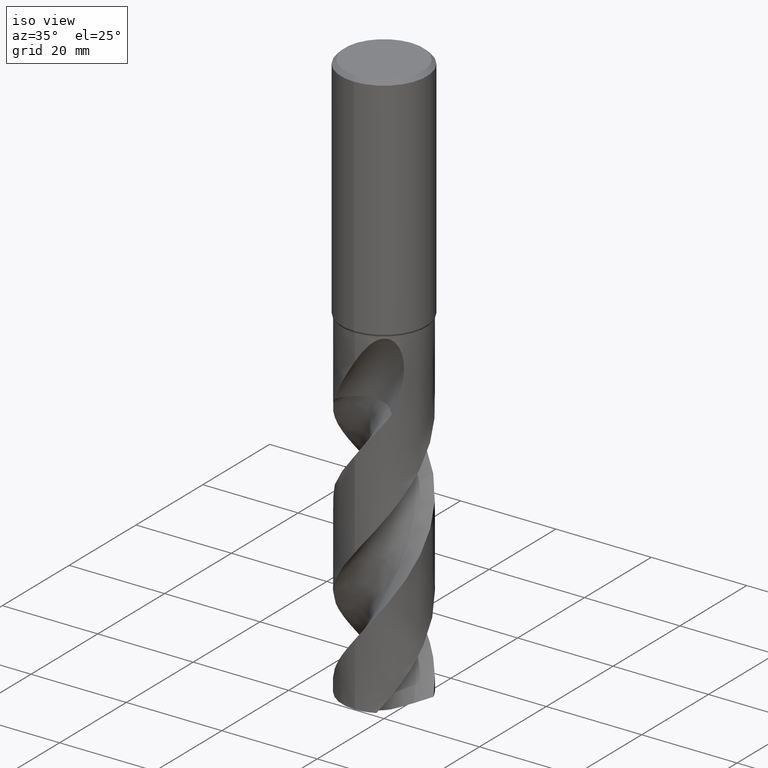
[diagram: clean part render]
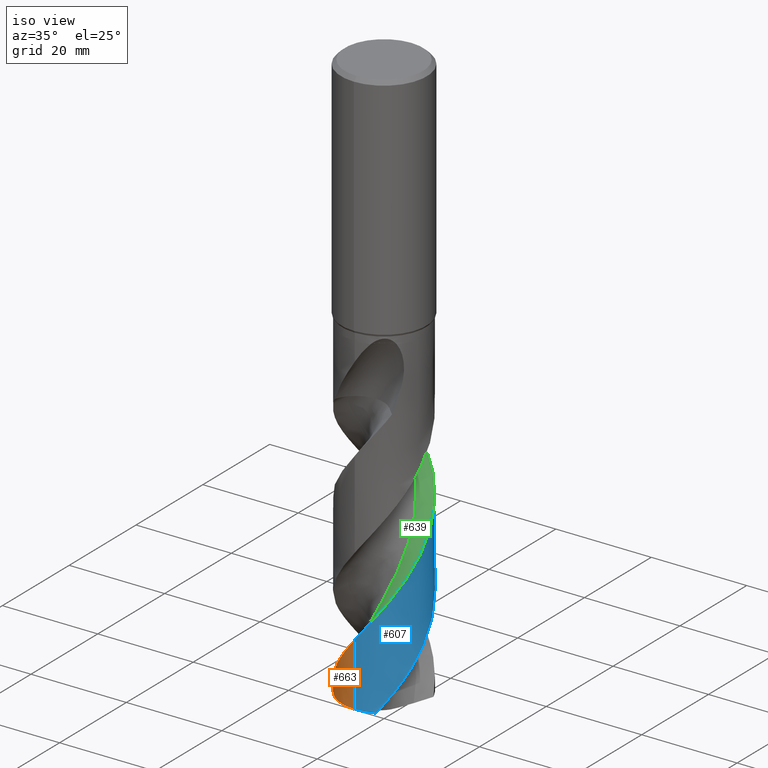
[diagram: same view with three faces highlighted in distinct colors, each labeled with its STEP entity id]
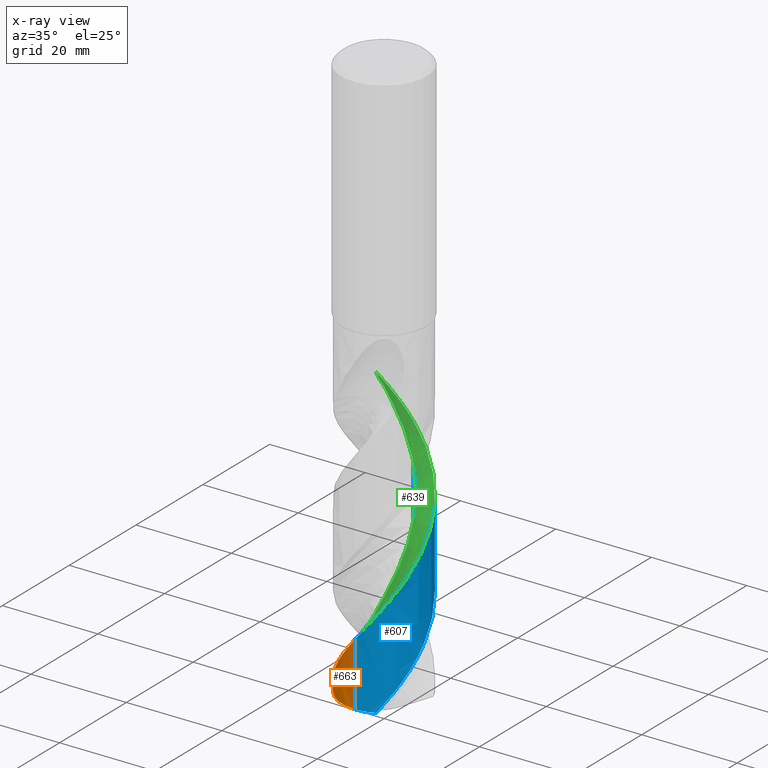
[diagram: x-ray of the same camera — body ghosted, the three highlighted faces saturated]
A machine part, iso view with three faces highlighted in distinct colors.
The next image is the same camera in x-ray (body ghosted, the three faces saturated) — at least one of them is partly hidden behind the body in this view.
Their STEP definitions:

[orange] entity #663 — the highlighted conical surface has half-angle 0 deg.
#285=EDGE_CURVE('',#453,#439,#770,.T.);
#439=VERTEX_POINT('',#943);
#453=VERTEX_POINT('',#957);
#455=EDGE_CURVE('',#439,#563,#959,.T.);
#563=VERTEX_POINT('',#1079);
#653=EDGE_CURVE('',#453,#563,#1176,.T.);
#663=ADVANCED_FACE('',(#1187),#1188,.T.);
#770=LINE('',#1386,#1387);
#943=CARTESIAN_POINT('',(5.35353248924E-016,-8.74998104379688,-106.580937867135));
#957=CARTESIAN_POINT('',(1.07070881923668E-015,-8.75,-119.815260450171));
#959=B_SPLINE_CURVE_WITH_KNOTS('',3,(#1913,#1914,#1915,#1916,#1917,#1918,#1919,#1920,#1921,#1922,#1923,#1924,#1925,#1926,#1927,#1928,#1929,#1930,#1931,#1932,#1933,#1934,#1935,#1936,#1937,#1938,#1939,#1940,#1941,#1942,#1943,#1944,#1945,#1946,#1947,#1948,#1949,#1950,#1951,#1952,#1953,#1954,#1955,#1956,#1957,#1958,#1959,#1960,#1961,#1962,#1963,#1964,#1965,#1966,#1967,#1968,#1969,#1970,#1971,#1972,#1973,#1974,#1975,#1976,#1977,#1978,#1979,#1980,#1981,#1982,#1983,#1984,#1985,#1986,#1987,#1988,#1989,#1990,#1991,#1992,#1993,#1994,#1995,#1996,#1997,#1998,#1999,#2000,#2001,#2002,#2003,#2004,#2005,#2006,#2007,#2008),.UNSPECIFIED.,.F.,.F.,(4,2,2,2,2,2,2,2,2,2,2,2,2,2,2,2,2,2,2,2,2,2,2,2,2,2,2,2,2,2,2,2,2,2,2,2,2,2,2,2,2,2,2,2,2,2,2,4),(0.0,0.245507385937715,0.350571660644554,1.39572725614413,1.7512116317998,1.97614686400498,2.18570531646539,2.90763652407848,3.24173027248753,3.70690766796851,4.3511183427417,5.37181341861911,6.99202772068814,8.75473551307176,9.8223909562357,12.4353693303586,13.5149695308237,14.5839453902504,16.7292639533528,17.8100349580554,19.9438823498146,22.0974948302043,24.2480668377977,26.3975936922339,27.4770866892394,28.5406174047994,30.6845559205653,31.7651695485302,33.8998065264109,36.0538108730351,38.2023473007618,40.3517940889976,42.5096471819675,44.6540260477166,45.7343487976098,47.8665946934781,50.0208399046384,52.1672222359407,54.3168824060441,55.3175251611577,56.2465060231122,59.741848965142,61.0610370793442,63.3781294049847,64.2490927651339,65.0112058879898,65.094397942411,70.3596380678378),.UNSPECIFIED.);
#1079=CARTESIAN_POINT('',(-8.13744065526408,-3.21629594130505,-119.815260450171));
#1176=CIRCLE('',#5056,8.75);
#1187=FACE_OUTER_BOUND('',#5070,.T.);
#1188=CONICAL_SURFACE('',#5071,8.74995,1.43235159984931E-006);
#1386=CARTESIAN_POINT('',(1.07070269620491E-015,-8.74995,-84.9076302250854));
#1387=VECTOR('',#5461,1.0);
#1913=CARTESIAN_POINT('',(-6.08186943309706,6.29062365396806,-63.235));
#1914=CARTESIAN_POINT('',(-6.0469511397404,6.32438331567688,-63.3008642196098));
#1915=CARTESIAN_POINT('',(-6.01169387384533,6.3579087591601,-63.3667040283536));
#1916=CARTESIAN_POINT('',(-5.96078889035636,6.4055069625759,-63.4606122507189));
#1917=CARTESIAN_POINT('',(-5.94546612602131,6.4197320170628,-63.4887336144532));
#1918=CARTESIAN_POINT('',(-5.77689376715895,6.57510367454731,-63.7964182335438));
#1919=CARTESIAN_POINT('',(-5.61986938115472,6.71005726589124,-64.067261411877));
#1920=CARTESIAN_POINT('',(-5.39333101928893,6.89046403370956,-64.4346657416091));
#1921=CARTESIAN_POINT('',(-5.33508238939867,6.93566993502438,-64.5273143604014));
#1922=CARTESIAN_POINT('',(-5.23841689245175,7.00873108781811,-64.6785128787296));
#1923=CARTESIAN_POINT('',(-5.20066220418053,7.03679304292886,-64.7369516106116));
#1924=CARTESIAN_POINT('',(-5.12710835866557,7.09054389196633,-64.8497869063541));
#1925=CARTESIAN_POINT('',(-5.09140179274385,7.11622730940027,-64.9041103587308));
#1926=CARTESIAN_POINT('',(-4.931615376455,7.229337483473,-65.1455740014105));
#1927=CARTESIAN_POINT('',(-4.8058804744549,7.31358327693036,-65.3319736681571));
#1928=CARTESIAN_POINT('',(-4.61491717777977,7.43429817009919,-65.6131355291182));
#1929=CARTESIAN_POINT('',(-4.55417461981925,7.47165978887842,-65.7021895700378));
#1930=CARTESIAN_POINT('',(-4.40810659691875,7.5590713937031,-65.9156068537202));
#1931=CARTESIAN_POINT('',(-4.32284856094712,7.60814257891526,-66.0396410500222));
#1932=CARTESIAN_POINT('',(-4.11732401261019,7.721878525783,-66.33734226343));
#1933=CARTESIAN_POINT('',(-3.99662547642531,7.78502685849317,-66.5109601435512));
#1934=CARTESIAN_POINT('',(-3.68149873164662,7.94066559570674,-66.9590563827829));
#1935=CARTESIAN_POINT('',(-3.48454365952162,8.02906177135658,-67.2338248923896));
#1936=CARTESIAN_POINT('',(-2.96631653643826,8.23892138626602,-67.9433538890273));
#1937=CARTESIAN_POINT('',(-2.64135024342654,8.34879770657279,-68.3745974656544));
#1938=CARTESIAN_POINT('',(-1.94973061900555,8.53811369184434,-69.2813541294336));
#1939=CARTESIAN_POINT('',(-1.58343601225544,8.61356585626273,-69.7537105830248));
#1940=CARTESIAN_POINT('',(-0.989423328932582,8.69675214728634,-70.513604482319));
#1941=CARTESIAN_POINT('',(-0.764296643250713,8.71941761225799,-70.8003492141118));
#1942=CARTESIAN_POINT('',(0.0136838135878846,8.76740065319282,-71.7888179492103));
#1943=CARTESIAN_POINT('',(0.56832329596561,8.74901878407041,-72.4879786145876));
#1944=CARTESIAN_POINT('',(1.3449189153175,8.64898492883878,-73.4787452159072));
#1945=CARTESIAN_POINT('',(1.57070264682781,8.61084288859849,-73.7683052753515));
#1946=CARTESIAN_POINT('',(2.01648424318467,8.51742343728163,-74.3449063054532));
#1947=CARTESIAN_POINT('',(2.23630284041407,8.46236365602733,-74.6317121211777));
#1948=CARTESIAN_POINT('',(2.88990635864361,8.27141903290686,-75.4946949944495));
#1949=CARTESIAN_POINT('',(3.3156792756227,8.11014469479738,-76.070187953016));
#1950=CARTESIAN_POINT('',(3.93434653549782,7.81887590722706,-76.936088591175));
#1951=CARTESIAN_POINT('',(4.1377374055473,7.71317602307682,-77.2259808179137));
#1952=CARTESIAN_POINT('',(4.72978260520718,7.37532050161368,-78.0885676501918));
#1953=CARTESIAN_POINT('',(5.10462887895006,7.12100011098209,-78.6602519777641));
#1954=CARTESIAN_POINT('',(5.81465576531498,6.55434894215413,-79.8113522498303));
#1955=CARTESIAN_POINT('',(6.14861489427896,6.24215829473489,-80.388715758733));
#1956=CARTESIAN_POINT('',(6.76450180429577,5.56874862974643,-81.5438396630749));
#1957=CARTESIAN_POINT('',(7.04535247811715,5.20885908467647,-82.1196848256906));
#1958=CARTESIAN_POINT('',(7.5481918572921,4.44902588765169,-83.2742335727208));
#1959=CARTESIAN_POINT('',(7.76958568923962,4.0500402021113,-83.8507073647394));
#1960=CARTESIAN_POINT('',(8.0540292232344,3.42733332392809,-84.7173950227698));
#1961=CARTESIAN_POINT('',(8.14092768247589,3.21548254540231,-85.0069489155959));
#1962=CARTESIAN_POINT('',(8.29676501003112,2.78858351030627,-85.5820635232352));
#1963=CARTESIAN_POINT('',(8.36585655676432,2.57388800865619,-85.8673170979798));
#1964=CARTESIAN_POINT('',(8.54895906403841,1.91922711876685,-86.7284907226256));
#1965=CARTESIAN_POINT('',(8.63709800229521,1.47268974968778,-87.3037081690975));
#1966=CARTESIAN_POINT('',(8.71688945219652,0.793743889287,-88.1693570324932));
#1967=CARTESIAN_POINT('',(8.73468768585116,0.565213562522589,-88.4592722167705));
#1968=CARTESIAN_POINT('',(8.76088967356746,-0.116169465816523,-89.3222298787584));
#1969=CARTESIAN_POINT('',(8.74314435955474,-0.569036246803677,-89.8943389300833));
#1970=CARTESIAN_POINT('',(8.6373782905467,-1.47167612533566,-91.0459857168135));
#1971=CARTESIAN_POINT('',(8.54884317358712,-1.92034627534931,-91.6235264923962));
#1972=CARTESIAN_POINT('',(8.30273017522409,-2.79894480314114,-92.7783971004299));
#1973=CARTESIAN_POINT('',(8.1457938168206,-3.22726047841483,-93.3538208056576));
#1974=CARTESIAN_POINT('',(7.76673947991715,-4.05550608650931,-94.5080111462694));
#1975=CARTESIAN_POINT('',(7.54505711999457,-4.4544072889608,-95.0845539574365));
#1976=CARTESIAN_POINT('',(7.04042120636769,-5.215722158322,-96.2408598953444));
#1977=CARTESIAN_POINT('',(6.75814944807534,-5.57660733797301,-96.8185444505766));
#1978=CARTESIAN_POINT('',(6.14181475544042,-6.24873341277387,-97.973860393479));
#1979=CARTESIAN_POINT('',(5.80891291410941,-6.5593634378046,-98.5492655798768));
#1980=CARTESIAN_POINT('',(5.27418197511157,-6.985518452004,-99.415085729937));
#1981=CARTESIAN_POINT('',(5.08947218339199,-7.12122034507693,-99.7049656319466));
#1982=CARTESIAN_POINT('',(4.52489338253435,-7.50279372557001,-100.567341567117));
#1983=CARTESIAN_POINT('',(4.1312445705883,-7.72651839791604,-101.138967443609));
#1984=CARTESIAN_POINT('',(3.30903650493038,-8.11300256718905,-102.290209920936));
#1985=CARTESIAN_POINT('',(2.88110157640309,-8.27466664491174,-102.867871051016));
#1986=CARTESIAN_POINT('',(2.00517739388076,-8.52928048852331,-104.022387319789));
#1987=CARTESIAN_POINT('',(1.55893003441526,-8.62199673376495,-104.59736122784));
#1988=CARTESIAN_POINT('',(0.655677343218739,-8.73726726780765,-105.751221411342));
#1989=CARTESIAN_POINT('',(0.199751170593909,-8.75957279491682,-106.327898872506));
#1990=CARTESIAN_POINT('',(-0.468094298187817,-8.74002909935699,-107.17373847657));
#1991=CARTESIAN_POINT('',(-0.679949724521017,-8.72610534480909,-107.442254452877));
#1992=CARTESIAN_POINT('',(-1.08714924866235,-8.68441956682777,-107.960279209299));
#1993=CARTESIAN_POINT('',(-1.28239540733151,-8.65774041111131,-108.209536055629));
#1994=CARTESIAN_POINT('',(-2.20703240870177,-8.49944129846142,-109.397757922129));
#1995=CARTESIAN_POINT('',(-2.9189716374759,-8.28201910513629,-110.333520350861));
#1996=CARTESIAN_POINT('',(-3.85026182304533,-7.86232263401528,-111.62615058281));
#1997=CARTESIAN_POINT('',(-4.09966292361018,-7.73519862420138,-111.979970120141));
#1998=CARTESIAN_POINT('',(-4.76898963767318,-7.35257888450787,-112.956813584554));
#1999=CARTESIAN_POINT('',(-5.17429777376951,-7.07322544784562,-113.57878037793));
#2000=CARTESIAN_POINT('',(-5.69680384627968,-6.64401364130755,-114.43508638268));
#2001=CARTESIAN_POINT('',(-5.83582492762374,-6.52224407368795,-114.668923794745));
#2002=CARTESIAN_POINT('',(-6.0891096053084,-6.285799327279,-115.107471232582));
#2003=CARTESIAN_POINT('',(-6.20423236127702,-6.17219876872902,-115.312060184347));
#2004=CARTESIAN_POINT('',(-6.3283599981415,-6.04272820352643,-115.539050971754));
#2005=CARTESIAN_POINT('',(-6.34053719352665,-6.02994967205847,-115.561390240879));
#2006=CARTESIAN_POINT('',(-7.12092584054977,-5.20604616901402,-116.997674512639));
#2007=CARTESIAN_POINT('',(-7.72679317395198,-4.25525561690706,-118.401274615824));
#2008=CARTESIAN_POINT('',(-8.1374406552641,-3.21629594130502,-119.815260450171));
#5056=AXIS2_PLACEMENT_3D('',#5940,#5941,#5942);
#5070=EDGE_LOOP('',(#5960,#5961,#5962));
#5071=AXIS2_PLACEMENT_3D('',#5963,#5964,#5965);
#5461=DIRECTION('',(-1.75406687008252E-022,1.43235159984882E-006,0.999999999998974));
#5940=CARTESIAN_POINT('',(0.0,0.0,-119.815260450171));
#5941=DIRECTION('',(0.0,0.0,-1.0));
#5942=DIRECTION('',(0.0,1.0,0.0));
#5960=ORIENTED_EDGE('',*,*,#285,.T.);
#5961=ORIENTED_EDGE('',*,*,#455,.T.);
#5962=ORIENTED_EDGE('',*,*,#653,.F.);
#5963=CARTESIAN_POINT('',(0.0,0.0,-84.9076302250854));
#5964=DIRECTION('',(0.0,-0.0,-1.0));
#5965=DIRECTION('',(0.0,1.0,0.0));

[blue] entity #607 — the highlighted conical surface has half-angle 0 deg.
#285=EDGE_CURVE('',#453,#439,#770,.T.);
#363=VERTEX_POINT('',#857);
#381=EDGE_CURVE('',#579,#643,#876,.T.);
#439=VERTEX_POINT('',#943);
#453=VERTEX_POINT('',#957);
#481=EDGE_CURVE('',#363,#643,#988,.T.);
#485=EDGE_CURVE('',#579,#439,#992,.T.);
#495=EDGE_CURVE('',#363,#453,#1003,.T.);
#579=VERTEX_POINT('',#1096);
#607=ADVANCED_FACE('',(#1126),#1127,.T.);
#643=VERTEX_POINT('',#1166);
#770=LINE('',#1386,#1387);
#857=CARTESIAN_POINT('',(3.89440784613365,-7.83556555252859,-119.815260450171));
#876=LINE('',#1735,#1736);
#943=CARTESIAN_POINT('',(5.35353248924E-016,-8.74998104379688,-106.580937867135));
#957=CARTESIAN_POINT('',(1.07070881923668E-015,-8.75,-119.815260450171));
#988=B_SPLINE_CURVE_WITH_KNOTS('',3,(#2854,#2855,#2856,#2857,#2858,#2859,#2860,#2861,#2862,#2863,#2864,#2865,#2866,#2867,#2868,#2869,#2870,#2871,#2872,#2873,#2874,#2875,#2876,#2877,#2878,#2879,#2880,#2881,#2882,#2883,#2884,#2885,#2886,#2887,#2888,#2889,#2890,#2891,#2892,#2893,#2894,#2895,#2896,#2897,#2898,#2899,#2900,#2901,#2902,#2903,#2904,#2905,#2906,#2907,#2908,#2909,#2910,#2911,#2912,#2913,#2914,#2915,#2916,#2917,#2918,#2919,#2920,#2921,#2922,#2923,#2924,#2925,#2926,#2927),.UNSPECIFIED.,.F.,.F.,(4,2,2,2,2,2,2,2,2,2,2,2,2,2,2,2,2,2,2,2,2,2,2,2,2,2,2,2,2,2,2,2,2,2,2,2,4),(0.0,2.36497301206587,6.7849909002851,9.76430277250232,10.6459929718991,12.8761780997283,13.9835179027227,15.4402724521849,19.3437577868716,20.1887540804374,23.6988186102446,25.2289059460162,28.3246254618018,31.0803847388049,33.8328822823677,34.8626073681816,37.6226824171356,39.5305522266099,43.3418089678106,44.0454791087935,47.9475419685857,49.4807509291733,52.0147171661633,54.8221837793143,57.6250107538903,58.6164477142462,61.8280579999074,64.9266111869091,65.5419199608778,67.4297645220761,68.5105058054339,69.4481418849442,70.2767949800885,70.6423790617482,71.1821589288828,71.8272377396169,72.933652936328),.UNSPECIFIED.);
#992=B_SPLINE_CURVE_WITH_KNOTS('',3,(#2946,#2947,#2948,#2949,#2950,#2951,#2952,#2953,#2954,#2955,#2956,#2957,#2958,#2959,#2960,#2961,#2962,#2963,#2964,#2965,#2966,#2967,#2968,#2969,#2970,#2971,#2972,#2973,#2974,#2975,#2976,#2977,#2978,#2979,#2980,#2981,#2982,#2983,#2984,#2985,#2986,#2987,#2988,#2989,#2990,#2991,#2992,#2993,#2994,#2995,#2996,#2997,#2998,#2999,#3000,#3001,#3002,#3003,#3004,#3005,#3006,#3007,#3008,#3009,#3010,#3011,#3012,#3013,#3014,#3015,#3016,#3017,#3018,#3019,#3020,#3021,#3022,#3023,#3024,#3025,#3026,#3027,#3028,#3029,#3030,#3031,#3032,#3033,#3034,#3035,#3036,#3037,#3038,#3039,#3040,#3041),.UNSPECIFIED.,.F.,.F.,(4,2,2,2,2,2,2,2,2,2,2,2,2,2,2,2,2,2,2,2,2,2,2,2,2,2,2,2,2,2,2,2,2,2,2,2,2,2,2,2,2,2,2,2,2,2,2,4),(0.0,0.245507385937715,0.350571660644554,1.39572725614413,1.7512116317998,1.97614686400498,2.18570531646539,2.90763652407848,3.24173027248753,3.70690766796851,4.3511183427417,5.37181341861911,6.99202772068814,8.75473551307176,9.8223909562357,12.4353693303586,13.5149695308237,14.5839453902504,16.7292639533528,17.8100349580554,19.9438823498146,22.0974948302043,24.2480668377977,26.3975936922339,27.4770866892394,28.5406174047994,30.6845559205653,31.7651695485302,33.8998065264109,36.0538108730351,38.2023473007618,40.3517940889976,42.5096471819675,44.6540260477166,45.7343487976098,47.8665946934781,50.0208399046384,52.1672222359407,54.3168824060441,55.3175251611577,56.2465060231122,59.741848965142,61.0610370793442,63.3781294049847,64.2490927651339,65.0112058879898,65.094397942411,70.3596380678378),.UNSPECIFIED.);
#1003=CIRCLE('',#3302,8.75);
#1096=CARTESIAN_POINT('',(3.52958839104373E-013,8.74993118278873,-71.770345190448));
#1126=FACE_OUTER_BOUND('',#4503,.T.);
#1127=CONICAL_SURFACE('',#4504,8.74995,1.43235159984931E-006);
#1166=CARTESIAN_POINT('',(2.96065067773475E-012,8.74995746372751,-90.1184510249686));
#1386=CARTESIAN_POINT('',(1.07070269620491E-015,-8.74995,-84.9076302250854));
#1387=VECTOR('',#5461,1.0);
#1735=CARTESIAN_POINT('',(-1.07234617692071E-015,8.74995,-84.9076302250854));
#1736=VECTOR('',#5618,1.0);
#2854=CARTESIAN_POINT('',(3.89440784613365,-7.83556555252858,-119.815260450171));
#2855=CARTESIAN_POINT('',(4.33170319993063,-7.6182214180527,-119.196398945775));
#2856=CARTESIAN_POINT('',(4.75018441711697,-7.36458494896007,-118.580918217599));
#2857=CARTESIAN_POINT('',(5.88435034023542,-6.53997693042121,-116.807110462486));
#2858=CARTESIAN_POINT('',(6.53457585856501,-5.8903833533333,-115.65152138681));
#2859=CARTESIAN_POINT('',(7.43518865109931,-4.65399278212995,-113.717329399373));
#2860=CARTESIAN_POINT('',(7.74384992583722,-4.11979457125902,-112.944561001383));
#2861=CARTESIAN_POINT('',(8.06769903890483,-3.39228591589958,-111.934070204199));
#2862=CARTESIAN_POINT('',(8.13635298028081,-3.22413515904378,-111.702860174744));
#2863=CARTESIAN_POINT('',(8.36009649329419,-2.6233833109259,-110.888684077942));
#2864=CARTESIAN_POINT('',(8.48651437185284,-2.18028978561825,-110.308115567706));
#2865=CARTESIAN_POINT('',(8.62274210831868,-1.50429546489641,-109.436686995622));
#2866=CARTESIAN_POINT('',(8.65910257097103,-1.27844104597479,-109.147812260206));
#2867=CARTESIAN_POINT('',(8.72270198150678,-0.753053086554415,-108.47789202142));
#2868=CARTESIAN_POINT('',(8.74337707261663,-0.453244295900362,-108.096139847963));
#2869=CARTESIAN_POINT('',(8.76272743557486,0.649641610566652,-106.696108511904));
#2870=CARTESIAN_POINT('',(8.66618078855694,1.45063769407898,-105.690694408332));
#2871=CARTESIAN_POINT('',(8.41751910025128,2.39535110757035,-104.451141913355));
#2872=CARTESIAN_POINT('',(8.36833214937878,2.56189275703494,-104.230168915274));
#2873=CARTESIAN_POINT('',(8.08934556337532,3.41249568704315,-103.093571805301));
#2874=CARTESIAN_POINT('',(7.78049419609433,4.06788917100554,-102.187945989153));
#2875=CARTESIAN_POINT('',(7.22593994733081,4.9443868657672,-100.874307632455));
#2876=CARTESIAN_POINT('',(7.0435719193716,5.20086033074232,-100.474167348369));
#2877=CARTESIAN_POINT('',(6.45190396849843,5.94470447187986,-99.2686270448316));
#2878=CARTESIAN_POINT('',(6.00271000351053,6.39803282544005,-98.4690387831516));
#2879=CARTESIAN_POINT('',(5.06759131494278,7.15560509469416,-96.9456523227321));
#2880=CARTESIAN_POINT('',(4.59358008279252,7.46878080299985,-96.2254942904531));
#2881=CARTESIAN_POINT('',(3.59141756638524,7.99903665275639,-94.7917571532783));
#2882=CARTESIAN_POINT('',(3.06669181790336,8.21441445846863,-94.0799235176288));
#2883=CARTESIAN_POINT('',(2.32322300459237,8.43855198169799,-93.0940257657705));
#2884=CARTESIAN_POINT('',(2.1186751233046,8.49222747359741,-92.8250760604097));
#2885=CARTESIAN_POINT('',(1.35775645651569,8.66260918422275,-91.8362663238484));
#2886=CARTESIAN_POINT('',(0.792510101878019,8.73252997658824,-91.1213210049251));
#2887=CARTESIAN_POINT('',(-0.168909951522251,8.7571530699265,-89.9048016258074));
#2888=CARTESIAN_POINT('',(-0.561618444592993,8.74070614232905,-89.4058475810251));
#2889=CARTESIAN_POINT('',(-1.72957057366869,8.61297443267906,-87.9152821672958));
#2890=CARTESIAN_POINT('',(-2.49255785108517,8.42383794914578,-86.9350664263736));
#2891=CARTESIAN_POINT('',(-3.3544112613626,8.08272482577655,-85.7586224832168));
#2892=CARTESIAN_POINT('',(-3.48722466693839,8.026315205304,-85.5750204646708));
#2893=CARTESIAN_POINT('',(-4.34731088341468,7.63564191063929,-84.3753101191954));
#2894=CARTESIAN_POINT('',(-5.02717081508237,7.20626867321714,-83.3729622462924));
#2895=CARTESIAN_POINT('',(-5.87996734579607,6.48741272742208,-81.9587260326153));
#2896=CARTESIAN_POINT('',(-6.10944083577987,6.2717988350377,-81.5583867921967));
#2897=CARTESIAN_POINT('',(-6.68652876115176,5.66769576244337,-80.4998629893457));
#2898=CARTESIAN_POINT('',(-7.01188466212987,5.25987784341776,-79.8443436507072));
#2899=CARTESIAN_POINT('',(-7.61741812803025,4.34390181050401,-78.4551664884814));
#2900=CARTESIAN_POINT('',(-7.88713390434146,3.8324558598345,-77.7218622996089));
#2901=CARTESIAN_POINT('',(-8.32185868144339,2.76407858425026,-76.2628073734108));
#2902=CARTESIAN_POINT('',(-8.48563718608638,2.2105279714178,-75.5389818355967));
#2903=CARTESIAN_POINT('',(-8.63211116032789,1.4454924330647,-74.5515364197295));
#2904=CARTESIAN_POINT('',(-8.66336361618098,1.24452274005791,-74.2929977448024));
#2905=CARTESIAN_POINT('',(-8.76608030877899,0.388636103869046,-73.199198606122));
#2906=CARTESIAN_POINT('',(-8.77051773069497,-0.272505999330051,-72.3693967439819));
#2907=CARTESIAN_POINT('',(-8.6330478574981,-1.56096188008581,-70.7296036209204));
#2908=CARTESIAN_POINT('',(-8.49680856401865,-2.18393899260845,-69.9219130087714));
#2909=CARTESIAN_POINT('',(-8.25416418591021,-2.90618887720968,-68.9565040712098));
#2910=CARTESIAN_POINT('',(-8.21120783118277,-3.02546740640828,-68.7956968237647));
#2911=CARTESIAN_POINT('',(-8.02534542511748,-3.50816360860754,-68.1436117579617));
#2912=CARTESIAN_POINT('',(-7.86482686725317,-3.85424698761014,-67.677425851753));
#2913=CARTESIAN_POINT('',(-7.57339811651226,-4.38791742800176,-66.916364389553));
#2914=CARTESIAN_POINT('',(-7.46013791904807,-4.57776884626446,-66.6371015498736));
#2915=CARTESIAN_POINT('',(-7.23637336220817,-4.92265464220544,-66.0889998151962));
#2916=CARTESIAN_POINT('',(-7.13556045305549,-5.06712702734824,-65.8418176058071));
#2917=CARTESIAN_POINT('',(-6.93860824422473,-5.33300556134706,-65.386569119768));
#2918=CARTESIAN_POINT('',(-6.83798033573906,-5.46131857451972,-65.1590779679701));
#2919=CARTESIAN_POINT('',(-6.69912024048935,-5.62915246597559,-64.8737565622193));
#2920=CARTESIAN_POINT('',(-6.65516293408077,-5.68108718254819,-64.7875711650207));
#2921=CARTESIAN_POINT('',(-6.54244667952824,-5.81102611221369,-64.5767108354169));
#2922=CARTESIAN_POINT('',(-6.47203642006804,-5.88944675186806,-64.4536132454853));
#2923=CARTESIAN_POINT('',(-6.30989309613395,-6.06325838141017,-64.1884602475024));
#2924=CARTESIAN_POINT('',(-6.21699254773144,-6.15863894700079,-64.0479035366565));
#2925=CARTESIAN_POINT('',(-5.95139839903355,-6.41849228923307,-63.6750785970884));
#2926=CARTESIAN_POINT('',(-5.77045196142528,-6.58231712236056,-63.4509330755424));
#2927=CARTESIAN_POINT('',(-5.57559287318262,-6.74342982981346,-63.235));
#2946=CARTESIAN_POINT('',(-6.08186943309706,6.29062365396806,-63.235));
#2947=CARTESIAN_POINT('',(-6.0469511397404,6.32438331567688,-63.3008642196098));
#2948=CARTESIAN_POINT('',(-6.01169387384533,6.3579087591601,-63.3667040283536));
#2949=CARTESIAN_POINT('',(-5.96078889035636,6.4055069625759,-63.4606122507189));
#2950=CARTESIAN_POINT('',(-5.94546612602131,6.4197320170628,-63.4887336144532));
#2951=CARTESIAN_POINT('',(-5.77689376715895,6.57510367454731,-63.7964182335438));
#2952=CARTESIAN_POINT('',(-5.61986938115472,6.71005726589124,-64.067261411877));
#2953=CARTESIAN_POINT('',(-5.39333101928893,6.89046403370956,-64.4346657416091));
#2954=CARTESIAN_POINT('',(-5.33508238939867,6.93566993502438,-64.5273143604014));
#2955=CARTESIAN_POINT('',(-5.23841689245175,7.00873108781811,-64.6785128787296));
#2956=CARTESIAN_POINT('',(-5.20066220418053,7.03679304292886,-64.7369516106116));
#2957=CARTESIAN_POINT('',(-5.12710835866557,7.09054389196633,-64.8497869063541));
#2958=CARTESIAN_POINT('',(-5.09140179274385,7.11622730940027,-64.9041103587308));
#2959=CARTESIAN_POINT('',(-4.931615376455,7.229337483473,-65.1455740014105));
#2960=CARTESIAN_POINT('',(-4.8058804744549,7.31358327693036,-65.3319736681571));
#2961=CARTESIAN_POINT('',(-4.61491717777977,7.43429817009919,-65.6131355291182));
#2962=CARTESIAN_POINT('',(-4.55417461981925,7.47165978887842,-65.7021895700378));
#2963=CARTESIAN_POINT('',(-4.40810659691875,7.5590713937031,-65.9156068537202));
#2964=CARTESIAN_POINT('',(-4.32284856094712,7.60814257891526,-66.0396410500222));
#2965=CARTESIAN_POINT('',(-4.11732401261019,7.721878525783,-66.33734226343));
#2966=CARTESIAN_POINT('',(-3.99662547642531,7.78502685849317,-66.5109601435512));
#2967=CARTESIAN_POINT('',(-3.68149873164662,7.94066559570674,-66.9590563827829));
#2968=CARTESIAN_POINT('',(-3.48454365952162,8.02906177135658,-67.2338248923896));
#2969=CARTESIAN_POINT('',(-2.96631653643826,8.23892138626602,-67.9433538890273));
#2970=CARTESIAN_POINT('',(-2.64135024342654,8.34879770657279,-68.3745974656544));
#2971=CARTESIAN_POINT('',(-1.94973061900555,8.53811369184434,-69.2813541294336));
#2972=CARTESIAN_POINT('',(-1.58343601225544,8.61356585626273,-69.7537105830248));
#2973=CARTESIAN_POINT('',(-0.989423328932582,8.69675214728634,-70.513604482319));
#2974=CARTESIAN_POINT('',(-0.764296643250713,8.71941761225799,-70.8003492141118));
#2975=CARTESIAN_POINT('',(0.0136838135878846,8.76740065319282,-71.7888179492103));
#2976=CARTESIAN_POINT('',(0.56832329596561,8.74901878407041,-72.4879786145876));
#2977=CARTESIAN_POINT('',(1.3449189153175,8.64898492883878,-73.4787452159072));
#2978=CARTESIAN_POINT('',(1.57070264682781,8.61084288859849,-73.7683052753515));
#2979=CARTESIAN_POINT('',(2.01648424318467,8.51742343728163,-74.3449063054532));
#2980=CARTESIAN_POINT('',(2.23630284041407,8.46236365602733,-74.6317121211777));
#2981=CARTESIAN_POINT('',(2.88990635864361,8.27141903290686,-75.4946949944495));
#2982=CARTESIAN_POINT('',(3.3156792756227,8.11014469479738,-76.070187953016));
#2983=CARTESIAN_POINT('',(3.93434653549782,7.81887590722706,-76.936088591175));
#2984=CARTESIAN_POINT('',(4.1377374055473,7.71317602307682,-77.2259808179137));
#2985=CARTESIAN_POINT('',(4.72978260520718,7.37532050161368,-78.0885676501918));
#2986=CARTESIAN_POINT('',(5.10462887895006,7.12100011098209,-78.6602519777641));
#2987=CARTESIAN_POINT('',(5.81465576531498,6.55434894215413,-79.8113522498303));
#2988=CARTESIAN_POINT('',(6.14861489427896,6.24215829473489,-80.388715758733));
#2989=CARTESIAN_POINT('',(6.76450180429577,5.56874862974643,-81.5438396630749));
#2990=CARTESIAN_POINT('',(7.04535247811715,5.20885908467647,-82.1196848256906));
#2991=CARTESIAN_POINT('',(7.5481918572921,4.44902588765169,-83.2742335727208));
#2992=CARTESIAN_POINT('',(7.76958568923962,4.0500402021113,-83.8507073647394));
#2993=CARTESIAN_POINT('',(8.0540292232344,3.42733332392809,-84.7173950227698));
#2994=CARTESIAN_POINT('',(8.14092768247589,3.21548254540231,-85.0069489155959));
#2995=CARTESIAN_POINT('',(8.29676501003112,2.78858351030627,-85.5820635232352));
#2996=CARTESIAN_POINT('',(8.36585655676432,2.57388800865619,-85.8673170979798));
#2997=CARTESIAN_POINT('',(8.54895906403841,1.91922711876685,-86.7284907226256));
#2998=CARTESIAN_POINT('',(8.63709800229521,1.47268974968778,-87.3037081690975));
#2999=CARTESIAN_POINT('',(8.71688945219652,0.793743889287,-88.1693570324932));
#3000=CARTESIAN_POINT('',(8.73468768585116,0.565213562522589,-88.4592722167705));
#3001=CARTESIAN_POINT('',(8.76088967356746,-0.116169465816523,-89.3222298787584));
#3002=CARTESIAN_POINT('',(8.74314435955474,-0.569036246803677,-89.8943389300833));
#3003=CARTESIAN_POINT('',(8.6373782905467,-1.47167612533566,-91.0459857168135));
#3004=CARTESIAN_POINT('',(8.54884317358712,-1.92034627534931,-91.6235264923962));
#3005=CARTESIAN_POINT('',(8.30273017522409,-2.79894480314114,-92.7783971004299));
#3006=CARTESIAN_POINT('',(8.1457938168206,-3.22726047841483,-93.3538208056576));
#3007=CARTESIAN_POINT('',(7.76673947991715,-4.05550608650931,-94.5080111462694));
#3008=CARTESIAN_POINT('',(7.54505711999457,-4.4544072889608,-95.0845539574365));
#3009=CARTESIAN_POINT('',(7.04042120636769,-5.215722158322,-96.2408598953444));
#3010=CARTESIAN_POINT('',(6.75814944807534,-5.57660733797301,-96.8185444505766));
#3011=CARTESIAN_POINT('',(6.14181475544042,-6.24873341277387,-97.973860393479));
#3012=CARTESIAN_POINT('',(5.80891291410941,-6.5593634378046,-98.5492655798768));
#3013=CARTESIAN_POINT('',(5.27418197511157,-6.985518452004,-99.415085729937));
#3014=CARTESIAN_POINT('',(5.08947218339199,-7.12122034507693,-99.7049656319466));
#3015=CARTESIAN_POINT('',(4.52489338253435,-7.50279372557001,-100.567341567117));
#3016=CARTESIAN_POINT('',(4.1312445705883,-7.72651839791604,-101.138967443609));
#3017=CARTESIAN_POINT('',(3.30903650493038,-8.11300256718905,-102.290209920936));
#3018=CARTESIAN_POINT('',(2.88110157640309,-8.27466664491174,-102.867871051016));
#3019=CARTESIAN_POINT('',(2.00517739388076,-8.52928048852331,-104.022387319789));
#3020=CARTESIAN_POINT('',(1.55893003441526,-8.62199673376495,-104.59736122784));
#3021=CARTESIAN_POINT('',(0.655677343218739,-8.73726726780765,-105.751221411342));
#3022=CARTESIAN_POINT('',(0.199751170593909,-8.75957279491682,-106.327898872506));
#3023=CARTESIAN_POINT('',(-0.468094298187817,-8.74002909935699,-107.17373847657));
#3024=CARTESIAN_POINT('',(-0.679949724521017,-8.72610534480909,-107.442254452877));
#3025=CARTESIAN_POINT('',(-1.08714924866235,-8.68441956682777,-107.960279209299));
#3026=CARTESIAN_POINT('',(-1.28239540733151,-8.65774041111131,-108.209536055629));
#3027=CARTESIAN_POINT('',(-2.20703240870177,-8.49944129846142,-109.397757922129));
#3028=CARTESIAN_POINT('',(-2.9189716374759,-8.28201910513629,-110.333520350861));
#3029=CARTESIAN_POINT('',(-3.85026182304533,-7.86232263401528,-111.62615058281));
#3030=CARTESIAN_POINT('',(-4.09966292361018,-7.73519862420138,-111.979970120141));
#3031=CARTESIAN_POINT('',(-4.76898963767318,-7.35257888450787,-112.956813584554));
#3032=CARTESIAN_POINT('',(-5.17429777376951,-7.07322544784562,-113.57878037793));
#3033=CARTESIAN_POINT('',(-5.69680384627968,-6.64401364130755,-114.43508638268));
#3034=CARTESIAN_POINT('',(-5.83582492762374,-6.52224407368795,-114.668923794745));
#3035=CARTESIAN_POINT('',(-6.0891096053084,-6.285799327279,-115.107471232582));
#3036=CARTESIAN_POINT('',(-6.20423236127702,-6.17219876872902,-115.312060184347));
#3037=CARTESIAN_POINT('',(-6.3283599981415,-6.04272820352643,-115.539050971754));
#3038=CARTESIAN_POINT('',(-6.34053719352665,-6.02994967205847,-115.561390240879));
#3039=CARTESIAN_POINT('',(-7.12092584054977,-5.20604616901402,-116.997674512639));
#3040=CARTESIAN_POINT('',(-7.72679317395198,-4.25525561690706,-118.401274615824));
#3041=CARTESIAN_POINT('',(-8.1374406552641,-3.21629594130502,-119.815260450171));
#3302=AXIS2_PLACEMENT_3D('',#5762,#5763,#5764);
#4503=EDGE_LOOP('',(#5892,#5893,#5894,#5895,#5896));
#4504=AXIS2_PLACEMENT_3D('',#5897,#5898,#5899);
#5461=DIRECTION('',(-1.75406687008252E-022,1.43235159984882E-006,0.999999999998974));
#5618=DIRECTION('',(-1.75406687008252E-022,1.43235159984882E-006,-0.999999999998974));
#5762=CARTESIAN_POINT('',(0.0,0.0,-119.815260450171));
#5763=DIRECTION('',(0.0,0.0,-1.0));
#5764=DIRECTION('',(0.0,1.0,0.0));
#5892=ORIENTED_EDGE('',*,*,#381,.F.);
#5893=ORIENTED_EDGE('',*,*,#485,.T.);
#5894=ORIENTED_EDGE('',*,*,#285,.F.);
#5895=ORIENTED_EDGE('',*,*,#495,.F.);
#5896=ORIENTED_EDGE('',*,*,#481,.T.);
#5897=CARTESIAN_POINT('',(0.0,0.0,-84.9076302250854));
#5898=DIRECTION('',(0.0,-0.0,-1.0));
#5899=DIRECTION('',(0.0,1.0,0.0));

[green] entity #639 — the highlighted face is a freeform B-spline surface patch.
#295=VERTEX_POINT('',#780);
#433=EDGE_CURVE('',#555,#295,#937,.T.);
#439=VERTEX_POINT('',#943);
#455=EDGE_CURVE('',#439,#563,#959,.T.);
#485=EDGE_CURVE('',#579,#439,#992,.T.);
#555=VERTEX_POINT('',#1071);
#563=VERTEX_POINT('',#1079);
#579=VERTEX_POINT('',#1096);
#583=VERTEX_POINT('',#1100);
#589=EDGE_CURVE('',#555,#583,#1106,.T.);
#639=ADVANCED_FACE('',(#1161),#1162,.F.);
#701=EDGE_CURVE('',#563,#583,#1228,.T.);
#717=EDGE_CURVE('',#295,#579,#1244,.T.);
#780=CARTESIAN_POINT('',(-6.08186943309707,6.29062365396806,-63.235));
#937=LINE('',#1875,#1876);
#943=CARTESIAN_POINT('',(5.35353248924E-016,-8.74998104379688,-106.580937867135));
#959=B_SPLINE_CURVE_WITH_KNOTS('',3,(#1913,#1914,#1915,#1916,#1917,#1918,#1919,#1920,#1921,#1922,#1923,#1924,#1925,#1926,#1927,#1928,#1929,#1930,#1931,#1932,#1933,#1934,#1935,#1936,#1937,#1938,#1939,#1940,#1941,#1942,#1943,#1944,#1945,#1946,#1947,#1948,#1949,#1950,#1951,#1952,#1953,#1954,#1955,#1956,#1957,#1958,#1959,#1960,#1961,#1962,#1963,#1964,#1965,#1966,#1967,#1968,#1969,#1970,#1971,#1972,#1973,#1974,#1975,#1976,#1977,#1978,#1979,#1980,#1981,#1982,#1983,#1984,#1985,#1986,#1987,#1988,#1989,#1990,#1991,#1992,#1993,#1994,#1995,#1996,#1997,#1998,#1999,#2000,#2001,#2002,#2003,#2004,#2005,#2006,#2007,#2008),.UNSPECIFIED.,.F.,.F.,(4,2,2,2,2,2,2,2,2,2,2,2,2,2,2,2,2,2,2,2,2,2,2,2,2,2,2,2,2,2,2,2,2,2,2,2,2,2,2,2,2,2,2,2,2,2,2,4),(0.0,0.245507385937715,0.350571660644554,1.39572725614413,1.7512116317998,1.97614686400498,2.18570531646539,2.90763652407848,3.24173027248753,3.70690766796851,4.3511183427417,5.37181341861911,6.99202772068814,8.75473551307176,9.8223909562357,12.4353693303586,13.5149695308237,14.5839453902504,16.7292639533528,17.8100349580554,19.9438823498146,22.0974948302043,24.2480668377977,26.3975936922339,27.4770866892394,28.5406174047994,30.6845559205653,31.7651695485302,33.8998065264109,36.0538108730351,38.2023473007618,40.3517940889976,42.5096471819675,44.6540260477166,45.7343487976098,47.8665946934781,50.0208399046384,52.1672222359407,54.3168824060441,55.3175251611577,56.2465060231122,59.741848965142,61.0610370793442,63.3781294049847,64.2490927651339,65.0112058879898,65.094397942411,70.3596380678378),.UNSPECIFIED.);
#992=B_SPLINE_CURVE_WITH_KNOTS('',3,(#2946,#2947,#2948,#2949,#2950,#2951,#2952,#2953,#2954,#2955,#2956,#2957,#2958,#2959,#2960,#2961,#2962,#2963,#2964,#2965,#2966,#2967,#2968,#2969,#2970,#2971,#2972,#2973,#2974,#2975,#2976,#2977,#2978,#2979,#2980,#2981,#2982,#2983,#2984,#2985,#2986,#2987,#2988,#2989,#2990,#2991,#2992,#2993,#2994,#2995,#2996,#2997,#2998,#2999,#3000,#3001,#3002,#3003,#3004,#3005,#3006,#3007,#3008,#3009,#3010,#3011,#3012,#3013,#3014,#3015,#3016,#3017,#3018,#3019,#3020,#3021,#3022,#3023,#3024,#3025,#3026,#3027,#3028,#3029,#3030,#3031,#3032,#3033,#3034,#3035,#3036,#3037,#3038,#3039,#3040,#3041),.UNSPECIFIED.,.F.,.F.,(4,2,2,2,2,2,2,2,2,2,2,2,2,2,2,2,2,2,2,2,2,2,2,2,2,2,2,2,2,2,2,2,2,2,2,2,2,2,2,2,2,2,2,2,2,2,2,4),(0.0,0.245507385937715,0.350571660644554,1.39572725614413,1.7512116317998,1.97614686400498,2.18570531646539,2.90763652407848,3.24173027248753,3.70690766796851,4.3511183427417,5.37181341861911,6.99202772068814,8.75473551307176,9.8223909562357,12.4353693303586,13.5149695308237,14.5839453902504,16.7292639533528,17.8100349580554,19.9438823498146,22.0974948302043,24.2480668377977,26.3975936922339,27.4770866892394,28.5406174047994,30.6845559205653,31.7651695485302,33.8998065264109,36.0538108730351,38.2023473007618,40.3517940889976,42.5096471819675,44.6540260477166,45.7343487976098,47.8665946934781,50.0208399046384,52.1672222359407,54.3168824060441,55.3175251611577,56.2465060231122,59.741848965142,61.0610370793442,63.3781294049847,64.2490927651339,65.0112058879898,65.094397942411,70.3596380678378),.UNSPECIFIED.);
#1071=CARTESIAN_POINT('',(-4.12478955449379,4.33354377550621,-63.235));
#1079=CARTESIAN_POINT('',(-8.13744065526408,-3.21629594130505,-119.815260450171));
#1096=CARTESIAN_POINT('',(3.52958839104373E-013,8.74993118278873,-71.770345190448));
#1100=CARTESIAN_POINT('',(-5.37178128145233,-1.24871425534203,-120.992700976098));
#1106=B_SPLINE_CURVE_WITH_KNOTS('',3,(#4402,#4403,#4404,#4405,#4406,#4407,#4408,#4409,#4410,#4411,#4412,#4413,#4414,#4415,#4416,#4417,#4418,#4419,#4420,#4421,#4422,#4423,#4424,#4425,#4426,#4427,#4428,#4429,#4430,#4431,#4432,#4433,#4434,#4435,#4436,#4437,#4438,#4439,#4440,#4441,#4442,#4443,#4444,#4445,#4446,#4447,#4448,#4449,#4450,#4451,#4452,#4453,#4454,#4455,#4456,#4457,#4458,#4459),.UNSPECIFIED.,.F.,.F.,(4,1,2,2,2,2,2,2,1,2,1,2,1,2,1,2,1,2,1,2,1,2,1,2,1,2,1,2,1,2,1,2,2,1,2,4),(0.0,1.39101639114549,2.78203278229099,4.17304917343648,5.56406556458198,6.95508195572747,8.34609834687297,11.128131129164,13.9101639114549,16.6921966937459,19.4742294760369,22.2562622583279,25.0382950406189,27.8203278229099,30.6023606052009,33.3843933874919,36.1664261697829,38.9484589520739,41.7304917343648,44.5125245166558,47.2945572989468,50.0765900812378,52.8586228635288,55.6406556458198,58.4226884281108,61.2047212104018,63.9867539926927,66.7687867749837,69.5508195572747,72.3328523395657,75.1148851218567,77.8969179041477,80.6789506864387,83.4609834687297,86.2430162510207,89.0250490333116),.UNSPECIFIED.);
#1161=FACE_OUTER_BOUND('',#4668,.T.);
#1162=B_SPLINE_SURFACE_WITH_KNOTS('',3,3,((#4669,#4670,#4671,#4672,#4673,#4674,#4675,#4676,#4677,#4678,#4679,#4680,#4681,#4682,#4683,#4684,#4685,#4686,#4687,#4688,#4689,#4690,#4691,#4692,#4693,#4694,#4695,#4696,#4697,#4698,#4699,#4700,#4701,#4702,#4703,#4704,#4705,#4706,#4707,#4708,#4709,#4710,#4711,#4712,#4713,#4714,#4715,#4716,#4717,#4718,#4719,#4720,#4721,#4722,#4723,#4724,#4725,#4726,#4727,#4728),(#4729,#4730,#4731,#4732,#4733,#4734,#4735,#4736,#4737,#4738,#4739,#4740,#4741,#4742,#4743,#4744,#4745,#4746,#4747,#4748,#4749,#4750,#4751,#4752,#4753,#4754,#4755,#4756,#4757,#4758,#4759,#4760,#4761,#4762,#4763,#4764,#4765,#4766,#4767,#4768,#4769,#4770,#4771,#4772,#4773,#4774,#4775,#4776,#4777,#4778,#4779,#4780,#4781,#4782,#4783,#4784,#4785,#4786,#4787,#4788),(#4789,#4790,#4791,#4792,#4793,#4794,#4795,#4796,#4797,#4798,#4799,#4800,#4801,#4802,#4803,#4804,#4805,#4806,#4807,#4808,#4809,#4810,#4811,#4812,#4813,#4814,#4815,#4816,#4817,#4818,#4819,#4820,#4821,#4822,#4823,#4824,#4825,#4826,#4827,#4828,#4829,#4830,#4831,#4832,#4833,#4834,#4835,#4836,#4837,#4838,#4839,#4840,#4841,#4842,#4843,#4844,#4845,#4846,#4847,#4848),(#4849,#4850,#4851,#4852,#4853,#4854,#4855,#4856,#4857,#4858,#4859,#4860,#4861,#4862,#4863,#4864,#4865,#4866,#4867,#4868,#4869,#4870,#4871,#4872,#4873,#4874,#4875,#4876,#4877,#4878,#4879,#4880,#4881,#4882,#4883,#4884,#4885,#4886,#4887,#4888,#4889,#4890,#4891,#4892,#4893,#4894,#4895,#4896,#4897,#4898,#4899,#4900,#4901,#4902,#4903,#4904,#4905,#4906,#4907,#4908)),.UNSPECIFIED.,.F.,.F.,.F.,(4,4),(4,1,2,2,2,2,2,2,2,2,1,2,1,2,1,2,1,2,1,2,1,2,1,2,1,2,1,2,1,2,1,2,2,2,2,4),(2.5367484805458E-015,11.66666667),(0.0,1.39101639114549,2.78203278229099,4.17304917343648,5.56406556458198,6.95508195572747,8.34609834687297,11.128131129164,13.9101639114549,16.6921966937459,19.4742294760369,22.2562622583279,25.0382950406189,27.8203278229099,30.6023606052009,33.3843933874919,36.1664261697829,38.9484589520739,41.7304917343648,44.5125245166558,47.2945572989468,50.0765900812378,52.8586228635288,55.6406556458198,58.4226884281108,61.2047212104018,63.9867539926927,66.7687867749837,69.5508195572747,72.3328523395657,75.1148851218567,77.8969179041477,80.6789506864387,83.4609834687297,86.2430162510207,89.0250490333116),.UNSPECIFIED.);
#1228=B_SPLINE_CURVE_WITH_KNOTS('',3,(#5177,#5178,#5179,#5180,#5181,#5182),.UNSPECIFIED.,.F.,.F.,(4,2,4),(0.0,3.9223870742183,7.73565698496684),.UNSPECIFIED.);
#1244=B_SPLINE_CURVE_WITH_KNOTS('',3,(#5311,#5312,#5313,#5314,#5315,#5316,#5317,#5318,#5319,#5320,#5321,#5322,#5323,#5324,#5325,#5326,#5327,#5328,#5329,#5330,#5331,#5332,#5333,#5334,#5335,#5336,#5337,#5338,#5339,#5340,#5341,#5342,#5343,#5344,#5345,#5346,#5347,#5348,#5349,#5350,#5351,#5352,#5353,#5354,#5355,#5356,#5357,#5358,#5359,#5360,#5361,#5362,#5363,#5364,#5365,#5366,#5367,#5368,#5369,#5370,#5371,#5372,#5373,#5374,#5375,#5376,#5377,#5378,#5379,#5380,#5381,#5382,#5383,#5384,#5385,#5386,#5387,#5388,#5389,#5390,#5391,#5392,#5393,#5394,#5395,#5396,#5397,#5398,#5399,#5400,#5401,#5402,#5403,#5404,#5405,#5406),.UNSPECIFIED.,.F.,.F.,(4,2,2,2,2,2,2,2,2,2,2,2,2,2,2,2,2,2,2,2,2,2,2,2,2,2,2,2,2,2,2,2,2,2,2,2,2,2,2,2,2,2,2,2,2,2,2,4),(0.0,0.245507385937715,0.350571660644554,1.39572725614413,1.7512116317998,1.97614686400498,2.18570531646539,2.90763652407848,3.24173027248753,3.70690766796851,4.3511183427417,5.37181341861911,6.99202772068814,8.75473551307176,9.8223909562357,12.4353693303586,13.5149695308237,14.5839453902504,16.7292639533528,17.8100349580554,19.9438823498146,22.0974948302043,24.2480668377977,26.3975936922339,27.4770866892394,28.5406174047994,30.6845559205653,31.7651695485302,33.8998065264109,36.0538108730351,38.2023473007618,40.3517940889976,42.5096471819675,44.6540260477166,45.7343487976098,47.8665946934781,50.0208399046384,52.1672222359407,54.3168824060441,55.3175251611577,56.2465060231122,59.741848965142,61.0610370793442,63.3781294049847,64.2490927651339,65.0112058879898,65.094397942411,70.3596380678378),.UNSPECIFIED.);
#1875=CARTESIAN_POINT('',(-4.1247895545645,4.33354377543549,-63.235));
#1876=VECTOR('',#5713,0.999999999999999);
#1913=CARTESIAN_POINT('',(-6.08186943309706,6.29062365396806,-63.235));
#1914=CARTESIAN_POINT('',(-6.0469511397404,6.32438331567688,-63.3008642196098));
#1915=CARTESIAN_POINT('',(-6.01169387384533,6.3579087591601,-63.3667040283536));
#1916=CARTESIAN_POINT('',(-5.96078889035636,6.4055069625759,-63.4606122507189));
#1917=CARTESIAN_POINT('',(-5.94546612602131,6.4197320170628,-63.4887336144532));
#1918=CARTESIAN_POINT('',(-5.77689376715895,6.57510367454731,-63.7964182335438));
#1919=CARTESIAN_POINT('',(-5.61986938115472,6.71005726589124,-64.067261411877));
#1920=CARTESIAN_POINT('',(-5.39333101928893,6.89046403370956,-64.4346657416091));
#1921=CARTESIAN_POINT('',(-5.33508238939867,6.93566993502438,-64.5273143604014));
#1922=CARTESIAN_POINT('',(-5.23841689245175,7.00873108781811,-64.6785128787296));
#1923=CARTESIAN_POINT('',(-5.20066220418053,7.03679304292886,-64.7369516106116));
#1924=CARTESIAN_POINT('',(-5.12710835866557,7.09054389196633,-64.8497869063541));
#1925=CARTESIAN_POINT('',(-5.09140179274385,7.11622730940027,-64.9041103587308));
#1926=CARTESIAN_POINT('',(-4.931615376455,7.229337483473,-65.1455740014105));
#1927=CARTESIAN_POINT('',(-4.8058804744549,7.31358327693036,-65.3319736681571));
#1928=CARTESIAN_POINT('',(-4.61491717777977,7.43429817009919,-65.6131355291182));
#1929=CARTESIAN_POINT('',(-4.55417461981925,7.47165978887842,-65.7021895700378));
#1930=CARTESIAN_POINT('',(-4.40810659691875,7.5590713937031,-65.9156068537202));
#1931=CARTESIAN_POINT('',(-4.32284856094712,7.60814257891526,-66.0396410500222));
#1932=CARTESIAN_POINT('',(-4.11732401261019,7.721878525783,-66.33734226343));
#1933=CARTESIAN_POINT('',(-3.99662547642531,7.78502685849317,-66.5109601435512));
#1934=CARTESIAN_POINT('',(-3.68149873164662,7.94066559570674,-66.9590563827829));
#1935=CARTESIAN_POINT('',(-3.48454365952162,8.02906177135658,-67.2338248923896));
#1936=CARTESIAN_POINT('',(-2.96631653643826,8.23892138626602,-67.9433538890273));
#1937=CARTESIAN_POINT('',(-2.64135024342654,8.34879770657279,-68.3745974656544));
#1938=CARTESIAN_POINT('',(-1.94973061900555,8.53811369184434,-69.2813541294336));
#1939=CARTESIAN_POINT('',(-1.58343601225544,8.61356585626273,-69.7537105830248));
#1940=CARTESIAN_POINT('',(-0.989423328932582,8.69675214728634,-70.513604482319));
#1941=CARTESIAN_POINT('',(-0.764296643250713,8.71941761225799,-70.8003492141118));
#1942=CARTESIAN_POINT('',(0.0136838135878846,8.76740065319282,-71.7888179492103));
#1943=CARTESIAN_POINT('',(0.56832329596561,8.74901878407041,-72.4879786145876));
#1944=CARTESIAN_POINT('',(1.3449189153175,8.64898492883878,-73.4787452159072));
#1945=CARTESIAN_POINT('',(1.57070264682781,8.61084288859849,-73.7683052753515));
#1946=CARTESIAN_POINT('',(2.01648424318467,8.51742343728163,-74.3449063054532));
#1947=CARTESIAN_POINT('',(2.23630284041407,8.46236365602733,-74.6317121211777));
#1948=CARTESIAN_POINT('',(2.88990635864361,8.27141903290686,-75.4946949944495));
#1949=CARTESIAN_POINT('',(3.3156792756227,8.11014469479738,-76.070187953016));
#1950=CARTESIAN_POINT('',(3.93434653549782,7.81887590722706,-76.936088591175));
#1951=CARTESIAN_POINT('',(4.1377374055473,7.71317602307682,-77.2259808179137));
#1952=CARTESIAN_POINT('',(4.72978260520718,7.37532050161368,-78.0885676501918));
#1953=CARTESIAN_POINT('',(5.10462887895006,7.12100011098209,-78.6602519777641));
#1954=CARTESIAN_POINT('',(5.81465576531498,6.55434894215413,-79.8113522498303));
#1955=CARTESIAN_POINT('',(6.14861489427896,6.24215829473489,-80.388715758733));
#1956=CARTESIAN_POINT('',(6.76450180429577,5.56874862974643,-81.5438396630749));
#1957=CARTESIAN_POINT('',(7.04535247811715,5.20885908467647,-82.1196848256906));
#1958=CARTESIAN_POINT('',(7.5481918572921,4.44902588765169,-83.2742335727208));
#1959=CARTESIAN_POINT('',(7.76958568923962,4.0500402021113,-83.8507073647394));
#1960=CARTESIAN_POINT('',(8.0540292232344,3.42733332392809,-84.7173950227698));
#1961=CARTESIAN_POINT('',(8.14092768247589,3.21548254540231,-85.0069489155959));
#1962=CARTESIAN_POINT('',(8.29676501003112,2.78858351030627,-85.5820635232352));
#1963=CARTESIAN_POINT('',(8.36585655676432,2.57388800865619,-85.8673170979798));
#1964=CARTESIAN_POINT('',(8.54895906403841,1.91922711876685,-86.7284907226256));
#1965=CARTESIAN_POINT('',(8.63709800229521,1.47268974968778,-87.3037081690975));
#1966=CARTESIAN_POINT('',(8.71688945219652,0.793743889287,-88.1693570324932));
#1967=CARTESIAN_POINT('',(8.73468768585116,0.565213562522589,-88.4592722167705));
#1968=CARTESIAN_POINT('',(8.76088967356746,-0.116169465816523,-89.3222298787584));
#1969=CARTESIAN_POINT('',(8.74314435955474,-0.569036246803677,-89.8943389300833));
#1970=CARTESIAN_POINT('',(8.6373782905467,-1.47167612533566,-91.0459857168135));
#1971=CARTESIAN_POINT('',(8.54884317358712,-1.92034627534931,-91.6235264923962));
#1972=CARTESIAN_POINT('',(8.30273017522409,-2.79894480314114,-92.7783971004299));
#1973=CARTESIAN_POINT('',(8.1457938168206,-3.22726047841483,-93.3538208056576));
#1974=CARTESIAN_POINT('',(7.76673947991715,-4.05550608650931,-94.5080111462694));
#1975=CARTESIAN_POINT('',(7.54505711999457,-4.4544072889608,-95.0845539574365));
#1976=CARTESIAN_POINT('',(7.04042120636769,-5.215722158322,-96.2408598953444));
#1977=CARTESIAN_POINT('',(6.75814944807534,-5.57660733797301,-96.8185444505766));
#1978=CARTESIAN_POINT('',(6.14181475544042,-6.24873341277387,-97.973860393479));
#1979=CARTESIAN_POINT('',(5.80891291410941,-6.5593634378046,-98.5492655798768));
#1980=CARTESIAN_POINT('',(5.27418197511157,-6.985518452004,-99.415085729937));
#1981=CARTESIAN_POINT('',(5.08947218339199,-7.12122034507693,-99.7049656319466));
#1982=CARTESIAN_POINT('',(4.52489338253435,-7.50279372557001,-100.567341567117));
#1983=CARTESIAN_POINT('',(4.1312445705883,-7.72651839791604,-101.138967443609));
#1984=CARTESIAN_POINT('',(3.30903650493038,-8.11300256718905,-102.290209920936));
#1985=CARTESIAN_POINT('',(2.88110157640309,-8.27466664491174,-102.867871051016));
#1986=CARTESIAN_POINT('',(2.00517739388076,-8.52928048852331,-104.022387319789));
#1987=CARTESIAN_POINT('',(1.55893003441526,-8.62199673376495,-104.59736122784));
#1988=CARTESIAN_POINT('',(0.655677343218739,-8.73726726780765,-105.751221411342));
#1989=CARTESIAN_POINT('',(0.199751170593909,-8.75957279491682,-106.327898872506));
#1990=CARTESIAN_POINT('',(-0.468094298187817,-8.74002909935699,-107.17373847657));
#1991=CARTESIAN_POINT('',(-0.679949724521017,-8.72610534480909,-107.442254452877));
#1992=CARTESIAN_POINT('',(-1.08714924866235,-8.68441956682777,-107.960279209299));
#1993=CARTESIAN_POINT('',(-1.28239540733151,-8.65774041111131,-108.209536055629));
#1994=CARTESIAN_POINT('',(-2.20703240870177,-8.49944129846142,-109.397757922129));
#1995=CARTESIAN_POINT('',(-2.9189716374759,-8.28201910513629,-110.333520350861));
#1996=CARTESIAN_POINT('',(-3.85026182304533,-7.86232263401528,-111.62615058281));
#1997=CARTESIAN_POINT('',(-4.09966292361018,-7.73519862420138,-111.979970120141));
#1998=CARTESIAN_POINT('',(-4.76898963767318,-7.35257888450787,-112.956813584554));
#1999=CARTESIAN_POINT('',(-5.17429777376951,-7.07322544784562,-113.57878037793));
#2000=CARTESIAN_POINT('',(-5.69680384627968,-6.64401364130755,-114.43508638268));
#2001=CARTESIAN_POINT('',(-5.83582492762374,-6.52224407368795,-114.668923794745));
#2002=CARTESIAN_POINT('',(-6.0891096053084,-6.285799327279,-115.107471232582));
#2003=CARTESIAN_POINT('',(-6.20423236127702,-6.17219876872902,-115.312060184347));
#2004=CARTESIAN_POINT('',(-6.3283599981415,-6.04272820352643,-115.539050971754));
#2005=CARTESIAN_POINT('',(-6.34053719352665,-6.02994967205847,-115.561390240879));
#2006=CARTESIAN_POINT('',(-7.12092584054977,-5.20604616901402,-116.997674512639));
#2007=CARTESIAN_POINT('',(-7.72679317395198,-4.25525561690706,-118.401274615824));
#2008=CARTESIAN_POINT('',(-8.1374406552641,-3.21629594130502,-119.815260450171));
#2946=CARTESIAN_POINT('',(-6.08186943309706,6.29062365396806,-63.235));
#2947=CARTESIAN_POINT('',(-6.0469511397404,6.32438331567688,-63.3008642196098));
#2948=CARTESIAN_POINT('',(-6.01169387384533,6.3579087591601,-63.3667040283536));
#2949=CARTESIAN_POINT('',(-5.96078889035636,6.4055069625759,-63.4606122507189));
#2950=CARTESIAN_POINT('',(-5.94546612602131,6.4197320170628,-63.4887336144532));
#2951=CARTESIAN_POINT('',(-5.77689376715895,6.57510367454731,-63.7964182335438));
#2952=CARTESIAN_POINT('',(-5.61986938115472,6.71005726589124,-64.067261411877));
#2953=CARTESIAN_POINT('',(-5.39333101928893,6.89046403370956,-64.4346657416091));
#2954=CARTESIAN_POINT('',(-5.33508238939867,6.93566993502438,-64.5273143604014));
#2955=CARTESIAN_POINT('',(-5.23841689245175,7.00873108781811,-64.6785128787296));
#2956=CARTESIAN_POINT('',(-5.20066220418053,7.03679304292886,-64.7369516106116));
#2957=CARTESIAN_POINT('',(-5.12710835866557,7.09054389196633,-64.8497869063541));
#2958=CARTESIAN_POINT('',(-5.09140179274385,7.11622730940027,-64.9041103587308));
#2959=CARTESIAN_POINT('',(-4.931615376455,7.229337483473,-65.1455740014105));
#2960=CARTESIAN_POINT('',(-4.8058804744549,7.31358327693036,-65.3319736681571));
#2961=CARTESIAN_POINT('',(-4.61491717777977,7.43429817009919,-65.6131355291182));
#2962=CARTESIAN_POINT('',(-4.55417461981925,7.47165978887842,-65.7021895700378));
#2963=CARTESIAN_POINT('',(-4.40810659691875,7.5590713937031,-65.9156068537202));
#2964=CARTESIAN_POINT('',(-4.32284856094712,7.60814257891526,-66.0396410500222));
#2965=CARTESIAN_POINT('',(-4.11732401261019,7.721878525783,-66.33734226343));
#2966=CARTESIAN_POINT('',(-3.99662547642531,7.78502685849317,-66.5109601435512));
#2967=CARTESIAN_POINT('',(-3.68149873164662,7.94066559570674,-66.9590563827829));
#2968=CARTESIAN_POINT('',(-3.48454365952162,8.02906177135658,-67.2338248923896));
#2969=CARTESIAN_POINT('',(-2.96631653643826,8.23892138626602,-67.9433538890273));
#2970=CARTESIAN_POINT('',(-2.64135024342654,8.34879770657279,-68.3745974656544));
#2971=CARTESIAN_POINT('',(-1.94973061900555,8.53811369184434,-69.2813541294336));
#2972=CARTESIAN_POINT('',(-1.58343601225544,8.61356585626273,-69.7537105830248));
#2973=CARTESIAN_POINT('',(-0.989423328932582,8.69675214728634,-70.513604482319));
#2974=CARTESIAN_POINT('',(-0.764296643250713,8.71941761225799,-70.8003492141118));
#2975=CARTESIAN_POINT('',(0.0136838135878846,8.76740065319282,-71.7888179492103));
#2976=CARTESIAN_POINT('',(0.56832329596561,8.74901878407041,-72.4879786145876));
#2977=CARTESIAN_POINT('',(1.3449189153175,8.64898492883878,-73.4787452159072));
#2978=CARTESIAN_POINT('',(1.57070264682781,8.61084288859849,-73.7683052753515));
#2979=CARTESIAN_POINT('',(2.01648424318467,8.51742343728163,-74.3449063054532));
#2980=CARTESIAN_POINT('',(2.23630284041407,8.46236365602733,-74.6317121211777));
#2981=CARTESIAN_POINT('',(2.88990635864361,8.27141903290686,-75.4946949944495));
#2982=CARTESIAN_POINT('',(3.3156792756227,8.11014469479738,-76.070187953016));
#2983=CARTESIAN_POINT('',(3.93434653549782,7.81887590722706,-76.936088591175));
#2984=CARTESIAN_POINT('',(4.1377374055473,7.71317602307682,-77.2259808179137));
#2985=CARTESIAN_POINT('',(4.72978260520718,7.37532050161368,-78.0885676501918));
#2986=CARTESIAN_POINT('',(5.10462887895006,7.12100011098209,-78.6602519777641));
#2987=CARTESIAN_POINT('',(5.81465576531498,6.55434894215413,-79.8113522498303));
#2988=CARTESIAN_POINT('',(6.14861489427896,6.24215829473489,-80.388715758733));
#2989=CARTESIAN_POINT('',(6.76450180429577,5.56874862974643,-81.5438396630749));
#2990=CARTESIAN_POINT('',(7.04535247811715,5.20885908467647,-82.1196848256906));
#2991=CARTESIAN_POINT('',(7.5481918572921,4.44902588765169,-83.2742335727208));
#2992=CARTESIAN_POINT('',(7.76958568923962,4.0500402021113,-83.8507073647394));
#2993=CARTESIAN_POINT('',(8.0540292232344,3.42733332392809,-84.7173950227698));
#2994=CARTESIAN_POINT('',(8.14092768247589,3.21548254540231,-85.0069489155959));
#2995=CARTESIAN_POINT('',(8.29676501003112,2.78858351030627,-85.5820635232352));
#2996=CARTESIAN_POINT('',(8.36585655676432,2.57388800865619,-85.8673170979798));
#2997=CARTESIAN_POINT('',(8.54895906403841,1.91922711876685,-86.7284907226256));
#2998=CARTESIAN_POINT('',(8.63709800229521,1.47268974968778,-87.3037081690975));
#2999=CARTESIAN_POINT('',(8.71688945219652,0.793743889287,-88.1693570324932));
#3000=CARTESIAN_POINT('',(8.73468768585116,0.565213562522589,-88.4592722167705));
#3001=CARTESIAN_POINT('',(8.76088967356746,-0.116169465816523,-89.3222298787584));
#3002=CARTESIAN_POINT('',(8.74314435955474,-0.569036246803677,-89.8943389300833));
#3003=CARTESIAN_POINT('',(8.6373782905467,-1.47167612533566,-91.0459857168135));
#3004=CARTESIAN_POINT('',(8.54884317358712,-1.92034627534931,-91.6235264923962));
#3005=CARTESIAN_POINT('',(8.30273017522409,-2.79894480314114,-92.7783971004299));
#3006=CARTESIAN_POINT('',(8.1457938168206,-3.22726047841483,-93.3538208056576));
#3007=CARTESIAN_POINT('',(7.76673947991715,-4.05550608650931,-94.5080111462694));
#3008=CARTESIAN_POINT('',(7.54505711999457,-4.4544072889608,-95.0845539574365));
#3009=CARTESIAN_POINT('',(7.04042120636769,-5.215722158322,-96.2408598953444));
#3010=CARTESIAN_POINT('',(6.75814944807534,-5.57660733797301,-96.8185444505766));
#3011=CARTESIAN_POINT('',(6.14181475544042,-6.24873341277387,-97.973860393479));
#3012=CARTESIAN_POINT('',(5.80891291410941,-6.5593634378046,-98.5492655798768));
#3013=CARTESIAN_POINT('',(5.27418197511157,-6.985518452004,-99.415085729937));
#3014=CARTESIAN_POINT('',(5.08947218339199,-7.12122034507693,-99.7049656319466));
#3015=CARTESIAN_POINT('',(4.52489338253435,-7.50279372557001,-100.567341567117));
#3016=CARTESIAN_POINT('',(4.1312445705883,-7.72651839791604,-101.138967443609));
#3017=CARTESIAN_POINT('',(3.30903650493038,-8.11300256718905,-102.290209920936));
#3018=CARTESIAN_POINT('',(2.88110157640309,-8.27466664491174,-102.867871051016));
#3019=CARTESIAN_POINT('',(2.00517739388076,-8.52928048852331,-104.022387319789));
#3020=CARTESIAN_POINT('',(1.55893003441526,-8.62199673376495,-104.59736122784));
#3021=CARTESIAN_POINT('',(0.655677343218739,-8.73726726780765,-105.751221411342));
#3022=CARTESIAN_POINT('',(0.199751170593909,-8.75957279491682,-106.327898872506));
#3023=CARTESIAN_POINT('',(-0.468094298187817,-8.74002909935699,-107.17373847657));
#3024=CARTESIAN_POINT('',(-0.679949724521017,-8.72610534480909,-107.442254452877));
#3025=CARTESIAN_POINT('',(-1.08714924866235,-8.68441956682777,-107.960279209299));
#3026=CARTESIAN_POINT('',(-1.28239540733151,-8.65774041111131,-108.209536055629));
#3027=CARTESIAN_POINT('',(-2.20703240870177,-8.49944129846142,-109.397757922129));
#3028=CARTESIAN_POINT('',(-2.9189716374759,-8.28201910513629,-110.333520350861));
#3029=CARTESIAN_POINT('',(-3.85026182304533,-7.86232263401528,-111.62615058281));
#3030=CARTESIAN_POINT('',(-4.09966292361018,-7.73519862420138,-111.979970120141));
#3031=CARTESIAN_POINT('',(-4.76898963767318,-7.35257888450787,-112.956813584554));
#3032=CARTESIAN_POINT('',(-5.17429777376951,-7.07322544784562,-113.57878037793));
#3033=CARTESIAN_POINT('',(-5.69680384627968,-6.64401364130755,-114.43508638268));
#3034=CARTESIAN_POINT('',(-5.83582492762374,-6.52224407368795,-114.668923794745));
#3035=CARTESIAN_POINT('',(-6.0891096053084,-6.285799327279,-115.107471232582));
#3036=CARTESIAN_POINT('',(-6.20423236127702,-6.17219876872902,-115.312060184347));
#3037=CARTESIAN_POINT('',(-6.3283599981415,-6.04272820352643,-115.539050971754));
#3038=CARTESIAN_POINT('',(-6.34053719352665,-6.02994967205847,-115.561390240879));
#3039=CARTESIAN_POINT('',(-7.12092584054977,-5.20604616901402,-116.997674512639));
#3040=CARTESIAN_POINT('',(-7.72679317395198,-4.25525561690706,-118.401274615824));
#3041=CARTESIAN_POINT('',(-8.1374406552641,-3.21629594130502,-119.815260450171));
#4402=CARTESIAN_POINT('',(-4.1247895544938,4.33354377550621,-63.235));
#4403=CARTESIAN_POINT('',(-3.77645616445166,4.31152079683385,-63.5457102260851));
#4404=CARTESIAN_POINT('',(-3.20662024093853,4.3327416030977,-64.1651343730379));
#4405=CARTESIAN_POINT('',(-2.89089463792021,4.47023649211264,-64.7831297684385));
#4406=CARTESIAN_POINT('',(-2.69035371169134,4.67658113932097,-65.4060808472433));
#4407=CARTESIAN_POINT('',(-2.59368328361544,4.78042581959444,-65.7183461283764));
#4408=CARTESIAN_POINT('',(-2.40211113893187,4.98912802571495,-66.3460502161992));
#4409=CARTESIAN_POINT('',(-2.27856935349798,5.07085990461522,-66.6595486270126));
#4410=CARTESIAN_POINT('',(-1.99098261609314,5.18751605156565,-67.2827938111816));
#4411=CARTESIAN_POINT('',(-1.83788062469508,5.23315518339921,-67.5937569778198));
#4412=CARTESIAN_POINT('',(-1.519654179233,5.30065511416193,-68.2135270523726));
#4413=CARTESIAN_POINT('',(-1.3648073029081,5.33422096522413,-68.5238374423506));
#4414=CARTESIAN_POINT('',(-0.910571157443271,5.43511942960356,-69.4572011099172));
#4415=CARTESIAN_POINT('',(-0.603432150116775,5.4782258595351,-70.0798248743369));
#4416=CARTESIAN_POINT('',(0.00849320171286022,5.52429413360709,-71.3267623241437));
#4417=CARTESIAN_POINT('',(0.63232583795208,5.50147392697858,-72.5723212023335));
#4418=CARTESIAN_POINT('',(1.24179383701627,5.37517440417505,-73.8164211751213));
#4419=CARTESIAN_POINT('',(1.83521538404798,5.21057912099607,-75.0619271845112));
#4420=CARTESIAN_POINT('',(2.41601505113245,4.98120582283179,-76.3076867982922));
#4421=CARTESIAN_POINT('',(2.94942882972431,4.65937189681166,-77.5525561380626));
#4422=CARTESIAN_POINT('',(3.45544802116565,4.30945288154386,-78.7977785802314));
#4423=CARTESIAN_POINT('',(3.92811607619388,3.90220328378114,-80.0434016414764));
#4424=CARTESIAN_POINT('',(4.32508455870751,3.42210827761753,-81.2883031296988));
#4425=CARTESIAN_POINT('',(4.68649656746802,2.92392990461419,-82.5335694349336));
#4426=CARTESIAN_POINT('',(4.99754550471388,2.38287775648526,-83.7792048052511));
#4427=CARTESIAN_POINT('',(5.21334478150672,1.79850004630504,-85.024101070578));
#4428=CARTESIAN_POINT('',(5.38977450609991,1.20893816943146,-86.2693761966126));
#4429=CARTESIAN_POINT('',(5.504460049285,0.595528197451616,-87.5150192164951));
#4430=CARTESIAN_POINT('',(5.51487036050869,-0.0273078146947815,-88.7599138410707));
#4431=CARTESIAN_POINT('',(5.48640383306262,-0.642017415345429,-90.0051806592729));
#4432=CARTESIAN_POINT('',(5.39174516771179,-1.2588233355954,-91.2508206772326));
#4433=CARTESIAN_POINT('',(5.19547825799709,-1.85004380506878,-92.4957138155722));
#4434=CARTESIAN_POINT('',(4.96517559267861,-2.42072835177363,-93.7409751987574));
#4435=CARTESIAN_POINT('',(4.67174269412443,-2.97148742600015,-94.9866112910163));
#4436=CARTESIAN_POINT('',(4.29091626874727,-3.46448919272117,-96.2315070005135));
#4437=CARTESIAN_POINT('',(3.88476261156395,-3.9268518212584,-97.4767750401516));
#4438=CARTESIAN_POINT('',(3.4256532697369,-4.34953630820278,-98.7224148538861));
#4439=CARTESIAN_POINT('',(2.90323156250137,-4.68884036288425,-99.9673148555738));
#4440=CARTESIAN_POINT('',(2.36705902760622,-4.99087263258737,-101.212590782194));
#4441=CARTESIAN_POINT('',(1.79400872040026,-5.23792849430001,-102.458230234942));
#4442=CARTESIAN_POINT('',(1.18878743981606,-5.38535006652249,-103.703113761097));
#4443=CARTESIAN_POINT('',(0.5829339658762,-5.49307019260873,-104.948366948598));
#4444=CARTESIAN_POINT('',(-0.0395688999833924,-5.53666201309968,-106.194013977329));
#4445=CARTESIAN_POINT('',(-0.659560654806151,-5.47538062408917,-107.438935544905));
#4446=CARTESIAN_POINT('',(-1.26703451116937,-5.37628751768538,-108.684224162543));
#4447=CARTESIAN_POINT('',(-1.86892135299355,-5.21143048978561,-109.929827752193));
#4448=CARTESIAN_POINT('',(-2.43370675428933,-4.94914752280466,-111.17465497643));
#4449=CARTESIAN_POINT('',(-2.97425901421179,-4.65566543800207,-112.419881611918));
#4450=CARTESIAN_POINT('',(-3.48774050487845,-4.30085656722699,-113.665637016453));
#4451=CARTESIAN_POINT('',(-3.93324555874842,-3.86416118280486,-114.910653784253));
#4452=CARTESIAN_POINT('',(-4.34495863003048,-3.40531057209375,-116.155888939284));
#4453=CARTESIAN_POINT('',(-4.52930330042367,-3.15466041559549,-116.778439439662));
#4454=CARTESIAN_POINT('',(-4.85574043555923,-2.62955971642568,-118.023786828017));
#4455=CARTESIAN_POINT('',(-5.1314317125396,-2.06849706048039,-119.270147478998));
#4456=CARTESIAN_POINT('',(-5.31627738212136,-1.47775852974929,-120.513746511354));
#4457=CARTESIAN_POINT('',(-5.46130524510955,-0.883086878880869,-121.757449543899));
#4458=CARTESIAN_POINT('',(-5.49151355102552,-0.567624054684736,-122.380227039899));
#4459=CARTESIAN_POINT('',(-5.48400523910252,-0.247098141477521,-123.002075501232));
#4668=EDGE_LOOP('',(#5934,#5935,#5936,#5937,#5938,#5939));
#4669=CARTESIAN_POINT('',(-4.12478955456451,4.3335437754355,-63.235));
#4670=CARTESIAN_POINT('',(-3.77645616452237,4.3115207967549,-63.5457102260861));
#4671=CARTESIAN_POINT('',(-3.20662024100923,4.33274160303085,-64.1651343730378));
#4672=CARTESIAN_POINT('',(-2.89089463799721,4.47023649204884,-64.7831297684373));
#4673=CARTESIAN_POINT('',(-2.69035371176834,4.67658113925717,-65.4060808472442));
#4674=CARTESIAN_POINT('',(-2.59368328369837,4.7804258195468,-65.7183461283763));
#4675=CARTESIAN_POINT('',(-2.40211113901479,4.98912802565083,-66.3460502161991));
#4676=CARTESIAN_POINT('',(-2.27856935357339,5.07085990457552,-66.6595486270126));
#4677=CARTESIAN_POINT('',(-1.99098261619326,5.18751605150948,-67.2827938111816));
#4678=CARTESIAN_POINT('',(-1.83788062478645,5.23315518335445,-67.5937569778198));
#4679=CARTESIAN_POINT('',(-1.51965417932437,5.30065511412541,-68.2135270523726));
#4680=CARTESIAN_POINT('',(-1.36480730300247,5.33422096518281,-68.5238374423547));
#4681=CARTESIAN_POINT('',(-0.910571157537638,5.43511942958695,-69.4572011099088));
#4682=CARTESIAN_POINT('',(-0.603432150215364,5.47822585951837,-70.0798248743369));
#4683=CARTESIAN_POINT('',(0.00849320161427064,5.52429413359036,-71.3267623241437));
#4684=CARTESIAN_POINT('',(0.320452119815132,5.51286262567487,-71.9497970721984));
#4685=CARTESIAN_POINT('',(0.937017237301512,5.43834557019495,-73.1941158797676));
#4686=CARTESIAN_POINT('',(1.24179383690123,5.37517440419191,-73.8164211751213));
#4687=CARTESIAN_POINT('',(1.83521538396588,5.21057912101293,-75.0619271845111));
#4688=CARTESIAN_POINT('',(2.41601505103677,4.98120582286539,-76.3076867982921));
#4689=CARTESIAN_POINT('',(2.94942882962038,4.65937189686015,-77.5525561380626));
#4690=CARTESIAN_POINT('',(3.45544802109467,4.30945288159236,-78.7977785802314));
#4691=CARTESIAN_POINT('',(3.92811607609823,3.90220328384452,-80.0434016414763));
#4692=CARTESIAN_POINT('',(4.3250845586575,3.42210827769223,-81.2883031296988));
#4693=CARTESIAN_POINT('',(4.68649656738507,2.92392990468889,-82.5335694349336));
#4694=CARTESIAN_POINT('',(4.99754550466424,2.38287775657949,-83.7792048052511));
#4695=CARTESIAN_POINT('',(5.21334478147693,1.79850004638105,-85.0241010705779));
#4696=CARTESIAN_POINT('',(5.38977450605365,1.20893816954042,-86.2693761966125));
#4697=CARTESIAN_POINT('',(5.50446004927095,0.595528197542319,-87.5150192164786));
#4698=CARTESIAN_POINT('',(5.51487036049516,-0.0273078145949218,-88.7599138411036));
#4699=CARTESIAN_POINT('',(5.48640383306557,-0.64201741524557,-90.0051806592399));
#4700=CARTESIAN_POINT('',(5.39174516771937,-1.25882333549465,-91.250820677249));
#4701=CARTESIAN_POINT('',(5.19547825802512,-1.85004380497279,-92.4957138155721));
#4702=CARTESIAN_POINT('',(4.96517559270665,-2.42072835167764,-93.7409751987574));
#4703=CARTESIAN_POINT('',(4.67174269417704,-2.97148742590072,-94.9866112910162));
#4704=CARTESIAN_POINT('',(4.29091626878901,-3.46448919265633,-96.2315070005135));
#4705=CARTESIAN_POINT('',(3.88476261163863,-3.92685182116062,-97.4767750401515));
#4706=CARTESIAN_POINT('',(3.4256532698007,-4.34953630814375,-98.7224148538861));
#4707=CARTESIAN_POINT('',(2.9032315625832,-4.68884036281854,-99.9673148555738));
#4708=CARTESIAN_POINT('',(2.36705902768805,-4.99087263253813,-101.212590782193));
#4709=CARTESIAN_POINT('',(1.79400872048774,-5.23792849424823,-102.458230234909));
#4710=CARTESIAN_POINT('',(1.18878743992053,-5.38535006650356,-103.703113761163));
#4711=CARTESIAN_POINT('',(0.582933965964202,-5.49307019257333,-104.948366948532));
#4712=CARTESIAN_POINT('',(-0.0395688998866709,-5.53666201310125,-106.194013977362));
#4713=CARTESIAN_POINT('',(-0.65956065468987,-5.47538062407889,-107.438935544904));
#4714=CARTESIAN_POINT('',(-1.26703451108603,-5.37628751770804,-108.684224162543));
#4715=CARTESIAN_POINT('',(-1.86892135289482,-5.21143048979642,-109.929827752192));
#4716=CARTESIAN_POINT('',(-2.43370675418071,-4.94914752285176,-111.17465497643));
#4717=CARTESIAN_POINT('',(-2.97425901413613,-4.6556654380327,-112.419881611918));
#4718=CARTESIAN_POINT('',(-3.48774050479296,-4.30085656728771,-113.66563701642));
#4719=CARTESIAN_POINT('',(-3.93324555865782,-3.86416118286787,-114.910653784319));
#4720=CARTESIAN_POINT('',(-4.34495862997283,-3.405310572165,-116.155888939218));
#4721=CARTESIAN_POINT('',(-4.52930330035367,-3.15466041566589,-116.778439439727));
#4722=CARTESIAN_POINT('',(-4.8557404355057,-2.62955971651256,-118.023786827951));
#4723=CARTESIAN_POINT('',(-4.99329646634718,-2.34867622161,-118.646865039311));
#4724=CARTESIAN_POINT('',(-5.22414415493726,-1.77347996213362,-119.892049109373));
#4725=CARTESIAN_POINT('',(-5.31627738208089,-1.47775852983571,-120.513746511354));
#4726=CARTESIAN_POINT('',(-5.46130524508555,-0.883086878983768,-121.757449543899));
#4727=CARTESIAN_POINT('',(-5.49151355100928,-0.567624054791645,-122.380227039965));
#4728=CARTESIAN_POINT('',(-5.48400523908628,-0.247098141576193,-123.002075501232));
#4729=CARTESIAN_POINT('',(-6.87464925994477,7.08340348088485,-63.2349999999914));
#4730=CARTESIAN_POINT('',(-6.52797361996631,7.05972259198695,-63.5456651027966));
#4731=CARTESIAN_POINT('',(-5.91782619824664,7.12232386038888,-64.1626306179655));
#4732=CARTESIAN_POINT('',(-5.46751536621841,7.38568323844169,-64.7765229914927));
#4733=CARTESIAN_POINT('',(-5.0759316775554,7.75031122623848,-65.399566078551));
#4734=CARTESIAN_POINT('',(-4.87660099901894,7.9314897598069,-65.7126396679107));
#4735=CARTESIAN_POINT('',(-4.46570584634584,8.28799453365938,-66.3443967632556));
#4736=CARTESIAN_POINT('',(-4.23885731448296,8.43132074092125,-66.6596049129222));
#4737=CARTESIAN_POINT('',(-3.75925536192145,8.65286373214093,-67.2833223901004));
#4738=CARTESIAN_POINT('',(-3.51156317909283,8.74494140926832,-67.5940099162102));
#4739=CARTESIAN_POINT('',(-3.00703323695685,8.89531058571097,-68.2115186217264));
#4740=CARTESIAN_POINT('',(-2.75426648224313,8.96804850669578,-68.5210317432441));
#4741=CARTESIAN_POINT('',(-1.99187716558545,9.17699204466355,-69.4539303247017));
#4742=CARTESIAN_POINT('',(-1.47262523871372,9.27520073664485,-70.0765467575545));
#4743=CARTESIAN_POINT('',(-0.423930230652491,9.39540860316944,-71.3248057949881));
#4744=CARTESIAN_POINT('',(0.105765803734027,9.40192053903581,-71.9481579205843));
#4745=CARTESIAN_POINT('',(1.15775913077696,9.32706203604978,-73.1917259280086));
#4746=CARTESIAN_POINT('',(1.68016771668812,9.24555268420177,-73.8137716103797));
#4747=CARTESIAN_POINT('',(2.70793867856207,9.00667495154606,-75.0594672416491));
#4748=CARTESIAN_POINT('',(3.71069084345645,8.66743406281204,-76.30561572477));
#4749=CARTESIAN_POINT('',(4.64247396369125,8.1673302636715,-77.5501709440023));
#4750=CARTESIAN_POINT('',(5.53454023984206,7.60331661531309,-78.7953575117615));
#4751=CARTESIAN_POINT('',(6.36956363704115,6.95245376690891,-80.0412625924329));
#4752=CARTESIAN_POINT('',(7.08347992946205,6.17226437541952,-81.2858742587468));
#4753=CARTESIAN_POINT('',(7.73817484627627,5.34454239416368,-82.5311405639816));
#4754=CARTESIAN_POINT('',(8.31047186308599,4.45389995983888,-83.7770663536983));
#4755=CARTESIAN_POINT('',(8.72612653494656,3.48150109169541,-85.0216703356415));
#4756=CARTESIAN_POINT('',(9.07035688880693,2.48386139896783,-86.2669505865917));
#4757=CARTESIAN_POINT('',(9.31596468540676,1.45406339899723,-87.5128918319902));
#4758=CARTESIAN_POINT('',(9.38662466011334,0.398899992466679,-88.7574913221076));
#4759=CARTESIAN_POINT('',(9.38151813889451,-0.656453700657512,-90.002758140244));
#4760=CARTESIAN_POINT('',(9.27266123759175,-1.70953198721904,-91.248692678151));
#4761=CARTESIAN_POINT('',(8.99023548040071,-2.72864826563279,-92.4932905284537));
#4762=CARTESIAN_POINT('',(8.63622119464112,-3.72285584280682,-93.7385467867233));
#4763=CARTESIAN_POINT('',(8.18508342452855,-4.68060166798534,-94.9844750351886));
#4764=CARTESIAN_POINT('',(7.58141683445454,-5.54888987945739,-96.2290772315145));
#4765=CARTESIAN_POINT('',(6.91843187249184,-6.36999788566739,-97.4743452711525));
#4766=CARTESIAN_POINT('',(6.17587813106486,-7.12458587425279,-98.7202807069758));
#4767=CARTESIAN_POINT('',(5.31900338429286,-7.74435604124049,-99.9648881301571));
#4768=CARTESIAN_POINT('',(4.42175875998056,-8.30000052812099,-101.210174306608));
#4769=CARTESIAN_POINT('',(3.47140335394382,-8.76652622824587,-102.456107634307));
#4770=CARTESIAN_POINT('',(2.45775642690605,-9.06799197054902,-103.700686282014));
#4771=CARTESIAN_POINT('',(1.42723130075735,-9.29560757673363,-104.945929219552));
#4772=CARTESIAN_POINT('',(0.376058771026561,-9.42148878815143,-106.191870519123));
#4773=CARTESIAN_POINT('',(-0.680231021091323,-9.37046449282984,-107.436523095843));
#4774=CARTESIAN_POINT('',(-1.72797997603323,-9.2440543047412,-108.681832213144));
#4775=CARTESIAN_POINT('',(-2.76159718759817,-9.01509091882099,-109.927717236144));
#4776=CARTESIAN_POINT('',(-3.74177436922514,-8.61809228916868,-111.172194297029));
#4777=CARTESIAN_POINT('',(-4.68916421547682,-8.15299151289632,-112.417364558445));
#4778=CARTESIAN_POINT('',(-5.588779852933,-7.59478654074001,-113.663463028582));
#4779=CARTESIAN_POINT('',(-6.3808583443454,-6.89418564274674,-114.90829230717));
#4780=CARTESIAN_POINT('',(-7.11869029902048,-6.13995154914944,-116.153594085973));
#4781=CARTESIAN_POINT('',(-7.45225704306403,-5.72911970192132,-116.776159951447));
#4782=CARTESIAN_POINT('',(-8.04944859765844,-4.85929155063209,-118.021374091864));
#4783=CARTESIAN_POINT('',(-8.30646386687752,-4.39659480793303,-118.644519581784));
#4784=CARTESIAN_POINT('',(-8.74555994101456,-3.43801065439527,-119.889898398641));
#4785=CARTESIAN_POINT('',(-8.92605444178454,-2.94138537288113,-120.511403912117));
#4786=CARTESIAN_POINT('',(-9.21413663817498,-1.92660965092231,-121.754814824469));
#4787=CARTESIAN_POINT('',(-9.29514714491136,-1.40353841362568,-122.378098579123));
#4788=CARTESIAN_POINT('',(-9.32128518555113,-0.878552068153399,-122.999762543425));
#4789=CARTESIAN_POINT('',(-9.62450896538431,9.83326318618624,-63.2350000000086));
#4790=CARTESIAN_POINT('',(-9.2794905271575,9.80792461442518,-63.5456201772755));
#4791=CARTESIAN_POINT('',(-8.62903233557798,9.91190597728953,-64.1601267139393));
#4792=CARTESIAN_POINT('',(-8.04413628299269,10.3011300388701,-64.7699163148187));
#4793=CARTESIAN_POINT('',(-7.46150945486595,10.8240412590855,-65.3930512096329));
#4794=CARTESIAN_POINT('',(-7.15951856383398,11.0825542613476,-65.7069333645402));
#4795=CARTESIAN_POINT('',(-6.52930070395807,11.5868604802988,-66.3427431533782));
#4796=CARTESIAN_POINT('',(-6.19914514427869,11.791782052795,-66.6596608300143));
#4797=CARTESIAN_POINT('',(-5.52752823866961,12.1182109371799,-67.2838513377791));
#4798=CARTESIAN_POINT('',(-5.18524560257031,12.2567273983872,-67.5942628561969));
#4799=CARTESIAN_POINT('',(-4.49441242529631,12.4899662939086,-68.2095101896097));
#4800=CARTESIAN_POINT('',(-4.14372590336095,12.601876327749,-68.5182266134968));
#4801=CARTESIAN_POINT('',(-3.07318268989842,12.9188641007177,-69.4506584012195));
#4802=CARTESIAN_POINT('',(-2.34181862522544,13.0721740816354,-70.0732686129474));
#4803=CARTESIAN_POINT('',(-0.85635336514752,13.2665246043262,-71.3228492937293));
#4804=CARTESIAN_POINT('',(-0.108920701961879,13.290976395102,-71.9465185100536));
#4805=CARTESIAN_POINT('',(1.37850121403528,13.2157805586948,-73.1893362351699));
#4806=CARTESIAN_POINT('',(2.1185413681902,13.1159318308304,-73.8111223937616));
#4807=CARTESIAN_POINT('',(3.58066220130683,12.8027699154237,-75.057006950903));
#4808=CARTESIAN_POINT('',(5.00536676495349,12.3536634176223,-76.30354519702));
#4809=CARTESIAN_POINT('',(6.33551861093923,11.6752872672098,-77.547785006186));
#4810=CARTESIAN_POINT('',(7.61363294534169,10.897181712145,-78.7929371868666));
#4811=CARTESIAN_POINT('',(8.81100999746417,10.0027037951068,-80.0391226694944));
#4812=CARTESIAN_POINT('',(9.84187721435188,8.92242001987932,-81.2834463924331));
#4813=CARTESIAN_POINT('',(10.7898512110591,7.76515533696732,-82.5287106888914));
#4814=CARTESIAN_POINT('',(11.623399288455,6.52492219012838,-83.7749286483541));
#4815=CARTESIAN_POINT('',(12.2389080684381,5.1645016294859,-85.0192391123113));
#4816=CARTESIAN_POINT('',(12.7509394914508,3.75878513591418,-86.2645254650081));
#4817=CARTESIAN_POINT('',(13.1274687683179,2.31259812341184,-87.510763996098));
#4818=CARTESIAN_POINT('',(13.2583798457177,0.825108246037636,-88.7550692179246));
#4819=CARTESIAN_POINT('',(13.2766315587994,-0.670890432480828,-90.0003352069447));
#4820=CARTESIAN_POINT('',(13.1535775881985,-2.16024156409737,-91.2465646911517));
#4821=CARTESIAN_POINT('',(12.7849930276279,-3.60725042933839,-92.4908676318881));
#4822=CARTESIAN_POINT('',(12.3072664716408,-5.02498563051978,-93.7361179841902));
#4823=CARTESIAN_POINT('',(11.6984245923581,-6.38971433775095,-94.9823381198908));
#4824=CARTESIAN_POINT('',(10.8719168500813,-7.63329141414888,-96.2266491726955));
#4825=CARTESIAN_POINT('',(9.9521016833919,-8.81314310228126,-97.4719137928287));
#4826=CARTESIAN_POINT('',(8.92610167972114,-9.89963638287931,-98.7181465752874));
#4827=CARTESIAN_POINT('',(7.7347772807991,-10.7998706827412,-99.9624630865937));
#4828=CARTESIAN_POINT('',(6.47645641758849,-11.6091294603587,-101.20775614957));
#4829=CARTESIAN_POINT('',(5.1487987624053,-12.2951231798115,-102.453985213081));
#4830=CARTESIAN_POINT('',(3.72672593879413,-12.7506344030459,-103.698260125538));
#4831=CARTESIAN_POINT('',(2.27152811079688,-13.0981444326937,-104.943490167982));
#4832=CARTESIAN_POINT('',(0.791686227103371,-13.3063159211233,-106.18972778492));
#4833=CARTESIAN_POINT('',(-0.70090043361093,-13.2655481741126,-107.434110521681));
#4834=CARTESIAN_POINT('',(-2.18892639481515,-13.111821279208,-108.679440389503));
#4835=CARTESIAN_POINT('',(-3.65427231299764,-12.8187514425259,-109.925607456303));
#4836=CARTESIAN_POINT('',(-5.04984244903389,-12.2870366786583,-111.169732018845));
#4837=CARTESIAN_POINT('',(-6.40406895216462,-11.6503179644314,-112.414849103961));
#4838=CARTESIAN_POINT('',(-7.68981943381857,-10.8887160384495,-113.661286791079));
#4839=CARTESIAN_POINT('',(-8.82847112929246,-9.9242106773214,-114.90593373025));
#4840=CARTESIAN_POINT('',(-9.89242196873931,-8.87459195141969,-116.151296332416));
#4841=CARTESIAN_POINT('',(-10.3752094297596,-8.30357785874129,-116.773883408954));
#4842=CARTESIAN_POINT('',(-11.2431581155891,-7.08902451405125,-118.018958410078));
#4843=CARTESIAN_POINT('',(-11.6196305203074,-6.44451310799169,-118.642174161252));
#4844=CARTESIAN_POINT('',(-12.266976473907,-5.10254163296558,-119.887747651091));
#4845=CARTESIAN_POINT('',(-12.5358319238316,-4.405012115296,-120.509062379974));
#4846=CARTESIAN_POINT('',(-12.9669676089834,-2.97013252349075,-121.752179037622));
#4847=CARTESIAN_POINT('',(-13.0987804123235,-2.23945288478931,-122.3759725924));
#4848=CARTESIAN_POINT('',(-13.158565132034,-1.51000599476368,-122.997449585239));
#4849=CARTESIAN_POINT('',(-12.3743686707646,12.5831228916356,-63.235));
#4850=CARTESIAN_POINT('',(-12.0310087833695,12.5561264096572,-63.5455750139476));
#4851=CARTESIAN_POINT('',(-11.3402378924314,12.7014883147244,-64.1576230389438));
#4852=CARTESIAN_POINT('',(-10.6207570112139,13.2165766251093,-64.7633094177589));
#4853=CARTESIAN_POINT('',(-9.84708742065301,13.8977715062204,-65.386536561055));
#4854=CARTESIAN_POINT('',(-9.44243643930817,14.233618521915,-65.7012269841514));
#4855=CARTESIAN_POINT('',(-8.5928952511355,14.8857266680001,-66.3410896203579));
#4856=CARTESIAN_POINT('',(-8.15943310518827,15.1522430492944,-66.659717516308));
#4857=CARTESIAN_POINT('',(-7.2958009843978,15.5835584576577,-67.2843795163139));
#4858=CARTESIAN_POINT('',(-6.85892815687669,15.7685133039938,-67.5945161148946));
#4859=CARTESIAN_POINT('',(-5.98179148292879,16.0846220858014,-68.2075014386563));
#4860=CARTESIAN_POINT('',(-5.53318508260161,16.2357035489548,-68.5154209143861));
#4861=CARTESIAN_POINT('',(-4.15448869794623,16.6607373564088,-69.4473876160124));
#4862=CARTESIAN_POINT('',(-3.21101235433826,16.8691515212197,-70.069990496165));
#4863=CARTESIAN_POINT('',(-1.28877615679982,17.1376365114474,-71.3208927645737));
#4864=CARTESIAN_POINT('',(-0.323607658657442,17.1800352693847,-71.944878717825));
#4865=CARTESIAN_POINT('',(1.59924374812518,17.104496063628,-73.1869469240255));
#4866=CARTESIAN_POINT('',(2.55691524797709,16.9863091499186,-73.8084734696345));
#4867=CARTESIAN_POINT('',(4.45338549590302,16.5988667068785,-75.0545463674265));
#4868=CARTESIAN_POINT('',(6.30004287768041,16.0398902161864,-76.3014744438051));
#4869=CARTESIAN_POINT('',(8.02856310439564,15.1832475558645,-77.5453998121258));
#4870=CARTESIAN_POINT('',(9.69272580470354,14.1910435240224,-78.7905161183967));
#4871=CARTESIAN_POINT('',(11.2524564373318,13.0529552390929,-80.0369836204509));
#4872=CARTESIAN_POINT('',(12.6002741866926,11.6725761176066,-81.2810175214812));
#4873=CARTESIAN_POINT('',(13.8415278884142,10.1857678264421,-82.5262818179394));
#4874=CARTESIAN_POINT('',(14.9363262874913,8.595944713695,-83.7727908374158));
#4875=CARTESIAN_POINT('',(15.751690142215,6.8475020341858,-85.0168070961459));
#4876=CARTESIAN_POINT('',(16.4315215538968,5.03370900595606,-86.2621011362162));
#4877=CARTESIAN_POINT('',(16.9389740450681,3.17113268425229,-87.5086359709951));
#4878=CARTESIAN_POINT('',(17.1301331844142,1.25131669371369,-88.7526466989286));
#4879=CARTESIAN_POINT('',(17.17174682555,-0.685327358507228,-89.9979126879488));
#4880=CARTESIAN_POINT('',(17.0344934979173,-2.61095021582175,-91.2444373326682));
#4881=CARTESIAN_POINT('',(16.579749609389,-4.48585424938393,-92.4884430635407));
#4882=CARTESIAN_POINT('',(15.9783127141897,-6.32711376226342,-93.733690853385));
#4883=CARTESIAN_POINT('',(15.2117650024024,-8.09882793922112,-94.9802025046776));
#4884=CARTESIAN_POINT('',(14.1624174157468,-9.71769274156439,-96.2242168412386));
#4885=CARTESIAN_POINT('',(12.9857709442451,-11.2562885261736,-97.4694865862875));
#4886=CARTESIAN_POINT('',(11.6763271815998,-12.674686109142,-98.7160098659193));
#4887=CARTESIAN_POINT('',(10.1505478212798,-13.8553866814704,-99.9600389236348));
#4888=CARTESIAN_POINT('',(8.53115743110991,-14.9182570356343,-101.205337111526));
#4889=CARTESIAN_POINT('',(6.82619259509332,-15.8237209138092,-102.451862612479));
#4890=CARTESIAN_POINT('',(4.99569524608687,-16.4332766273986,-103.695835208847));
#4891=CARTESIAN_POINT('',(3.1158251252828,-16.9006814965467,-104.941049876544));
#4892=CARTESIAN_POINT('',(1.20731405817022,-17.1911431766343,-106.187588170367));
#4893=CARTESIAN_POINT('',(-0.721570800012383,-17.1606314022491,-107.431692947704));
#4894=CARTESIAN_POINT('',(-2.64987185976235,-16.9795887068556,-108.677053565019));
#4895=CARTESIAN_POINT('',(-4.54694814770099,-16.6224110707823,-109.923494377797));
#4896=CARTESIAN_POINT('',(-6.35791006407831,-15.9559824058969,-111.167271339444));
#4897=CARTESIAN_POINT('',(-8.11897415350531,-15.1476430783733,-112.412332050487));
#4898=CARTESIAN_POINT('',(-9.79085878195861,-14.1826464923626,-113.659112803241));
#4899=CARTESIAN_POINT('',(-11.27608391498,-12.9542351372003,-114.903572253101));
#4900=CARTESIAN_POINT('',(-12.666153637787,-11.6092329284041,-116.149001479171));
#4901=CARTESIAN_POINT('',(-13.2981618912411,-10.8780377856112,-116.771606483131));
#4902=CARTESIAN_POINT('',(-14.4368675589708,-9.31875570755633,-118.016543111532));
#4903=CARTESIAN_POINT('',(-14.9327972802233,-8.4924313740075,-118.639823578809));
#4904=CARTESIAN_POINT('',(-15.7883929005987,-6.76707264553446,-119.885602065275));
#4905=CARTESIAN_POINT('',(-16.1456089835353,-5.86863863803418,-120.506722343195));
#4906=CARTESIAN_POINT('',(-16.7197990020728,-4.01365561573652,-121.749541755734));
#4907=CARTESIAN_POINT('',(-16.9024152874545,-3.07536724362335,-122.373844131557));
#4908=CARTESIAN_POINT('',(-16.9958450784988,-2.14145992134088,-122.995136627432));
#5177=CARTESIAN_POINT('',(-10.7618896217777,-6.10792368720121,-118.496098136005));
#5178=CARTESIAN_POINT('',(-10.0337002349107,-5.10282768751001,-118.907169986217));
#5179=CARTESIAN_POINT('',(-9.20510621896995,-4.17559250158441,-119.324244310912));
#5180=CARTESIAN_POINT('',(-7.39210067802043,-2.54395533796586,-120.158559295381));
#5181=CARTESIAN_POINT('',(-6.41652680309026,-1.83760322789279,-120.573789489088));
#5182=CARTESIAN_POINT('',(-5.37178128141934,-1.24871425543429,-120.992700976102));
#5311=CARTESIAN_POINT('',(-6.08186943309706,6.29062365396806,-63.235));
#5312=CARTESIAN_POINT('',(-6.0469511397404,6.32438331567688,-63.3008642196098));
#5313=CARTESIAN_POINT('',(-6.01169387384533,6.3579087591601,-63.3667040283536));
#5314=CARTESIAN_POINT('',(-5.96078889035636,6.4055069625759,-63.4606122507189));
#5315=CARTESIAN_POINT('',(-5.94546612602131,6.4197320170628,-63.4887336144532));
#5316=CARTESIAN_POINT('',(-5.77689376715895,6.57510367454731,-63.7964182335438));
#5317=CARTESIAN_POINT('',(-5.61986938115472,6.71005726589124,-64.067261411877));
#5318=CARTESIAN_POINT('',(-5.39333101928893,6.89046403370956,-64.4346657416091));
#5319=CARTESIAN_POINT('',(-5.33508238939867,6.93566993502438,-64.5273143604014));
#5320=CARTESIAN_POINT('',(-5.23841689245175,7.00873108781811,-64.6785128787296));
#5321=CARTESIAN_POINT('',(-5.20066220418053,7.03679304292886,-64.7369516106116));
#5322=CARTESIAN_POINT('',(-5.12710835866557,7.09054389196633,-64.8497869063541));
#5323=CARTESIAN_POINT('',(-5.09140179274385,7.11622730940027,-64.9041103587308));
#5324=CARTESIAN_POINT('',(-4.931615376455,7.229337483473,-65.1455740014105));
#5325=CARTESIAN_POINT('',(-4.8058804744549,7.31358327693036,-65.3319736681571));
#5326=CARTESIAN_POINT('',(-4.61491717777977,7.43429817009919,-65.6131355291182));
#5327=CARTESIAN_POINT('',(-4.55417461981925,7.47165978887842,-65.7021895700378));
#5328=CARTESIAN_POINT('',(-4.40810659691875,7.5590713937031,-65.9156068537202));
#5329=CARTESIAN_POINT('',(-4.32284856094712,7.60814257891526,-66.0396410500222));
#5330=CARTESIAN_POINT('',(-4.11732401261019,7.721878525783,-66.33734226343));
#5331=CARTESIAN_POINT('',(-3.99662547642531,7.78502685849317,-66.5109601435512));
#5332=CARTESIAN_POINT('',(-3.68149873164662,7.94066559570674,-66.9590563827829));
#5333=CARTESIAN_POINT('',(-3.48454365952162,8.02906177135658,-67.2338248923896));
#5334=CARTESIAN_POINT('',(-2.96631653643826,8.23892138626602,-67.9433538890273));
#5335=CARTESIAN_POINT('',(-2.64135024342654,8.34879770657279,-68.3745974656544));
#5336=CARTESIAN_POINT('',(-1.94973061900555,8.53811369184434,-69.2813541294336));
#5337=CARTESIAN_POINT('',(-1.58343601225544,8.61356585626273,-69.7537105830248));
#5338=CARTESIAN_POINT('',(-0.989423328932582,8.69675214728634,-70.513604482319));
#5339=CARTESIAN_POINT('',(-0.764296643250713,8.71941761225799,-70.8003492141118));
#5340=CARTESIAN_POINT('',(0.0136838135878846,8.76740065319282,-71.7888179492103));
#5341=CARTESIAN_POINT('',(0.56832329596561,8.74901878407041,-72.4879786145876));
#5342=CARTESIAN_POINT('',(1.3449189153175,8.64898492883878,-73.4787452159072));
#5343=CARTESIAN_POINT('',(1.57070264682781,8.61084288859849,-73.7683052753515));
#5344=CARTESIAN_POINT('',(2.01648424318467,8.51742343728163,-74.3449063054532));
#5345=CARTESIAN_POINT('',(2.23630284041407,8.46236365602733,-74.6317121211777));
#5346=CARTESIAN_POINT('',(2.88990635864361,8.27141903290686,-75.4946949944495));
#5347=CARTESIAN_POINT('',(3.3156792756227,8.11014469479738,-76.070187953016));
#5348=CARTESIAN_POINT('',(3.93434653549782,7.81887590722706,-76.936088591175));
#5349=CARTESIAN_POINT('',(4.1377374055473,7.71317602307682,-77.2259808179137));
#5350=CARTESIAN_POINT('',(4.72978260520718,7.37532050161368,-78.0885676501918));
#5351=CARTESIAN_POINT('',(5.10462887895006,7.12100011098209,-78.6602519777641));
#5352=CARTESIAN_POINT('',(5.81465576531498,6.55434894215413,-79.8113522498303));
#5353=CARTESIAN_POINT('',(6.14861489427896,6.24215829473489,-80.388715758733));
#5354=CARTESIAN_POINT('',(6.76450180429577,5.56874862974643,-81.5438396630749));
#5355=CARTESIAN_POINT('',(7.04535247811715,5.20885908467647,-82.1196848256906));
#5356=CARTESIAN_POINT('',(7.5481918572921,4.44902588765169,-83.2742335727208));
#5357=CARTESIAN_POINT('',(7.76958568923962,4.0500402021113,-83.8507073647394));
#5358=CARTESIAN_POINT('',(8.0540292232344,3.42733332392809,-84.7173950227698));
#5359=CARTESIAN_POINT('',(8.14092768247589,3.21548254540231,-85.0069489155959));
#5360=CARTESIAN_POINT('',(8.29676501003112,2.78858351030627,-85.5820635232352));
#5361=CARTESIAN_POINT('',(8.36585655676432,2.57388800865619,-85.8673170979798));
#5362=CARTESIAN_POINT('',(8.54895906403841,1.91922711876685,-86.7284907226256));
#5363=CARTESIAN_POINT('',(8.63709800229521,1.47268974968778,-87.3037081690975));
#5364=CARTESIAN_POINT('',(8.71688945219652,0.793743889287,-88.1693570324932));
#5365=CARTESIAN_POINT('',(8.73468768585116,0.565213562522589,-88.4592722167705));
#5366=CARTESIAN_POINT('',(8.76088967356746,-0.116169465816523,-89.3222298787584));
#5367=CARTESIAN_POINT('',(8.74314435955474,-0.569036246803677,-89.8943389300833));
#5368=CARTESIAN_POINT('',(8.6373782905467,-1.47167612533566,-91.0459857168135));
#5369=CARTESIAN_POINT('',(8.54884317358712,-1.92034627534931,-91.6235264923962));
#5370=CARTESIAN_POINT('',(8.30273017522409,-2.79894480314114,-92.7783971004299));
#5371=CARTESIAN_POINT('',(8.1457938168206,-3.22726047841483,-93.3538208056576));
#5372=CARTESIAN_POINT('',(7.76673947991715,-4.05550608650931,-94.5080111462694));
#5373=CARTESIAN_POINT('',(7.54505711999457,-4.4544072889608,-95.0845539574365));
#5374=CARTESIAN_POINT('',(7.04042120636769,-5.215722158322,-96.2408598953444));
#5375=CARTESIAN_POINT('',(6.75814944807534,-5.57660733797301,-96.8185444505766));
#5376=CARTESIAN_POINT('',(6.14181475544042,-6.24873341277387,-97.973860393479));
#5377=CARTESIAN_POINT('',(5.80891291410941,-6.5593634378046,-98.5492655798768));
#5378=CARTESIAN_POINT('',(5.27418197511157,-6.985518452004,-99.415085729937));
#5379=CARTESIAN_POINT('',(5.08947218339199,-7.12122034507693,-99.7049656319466));
#5380=CARTESIAN_POINT('',(4.52489338253435,-7.50279372557001,-100.567341567117));
#5381=CARTESIAN_POINT('',(4.1312445705883,-7.72651839791604,-101.138967443609));
#5382=CARTESIAN_POINT('',(3.30903650493038,-8.11300256718905,-102.290209920936));
#5383=CARTESIAN_POINT('',(2.88110157640309,-8.27466664491174,-102.867871051016));
#5384=CARTESIAN_POINT('',(2.00517739388076,-8.52928048852331,-104.022387319789));
#5385=CARTESIAN_POINT('',(1.55893003441526,-8.62199673376495,-104.59736122784));
#5386=CARTESIAN_POINT('',(0.655677343218739,-8.73726726780765,-105.751221411342));
#5387=CARTESIAN_POINT('',(0.199751170593909,-8.75957279491682,-106.327898872506));
#5388=CARTESIAN_POINT('',(-0.468094298187817,-8.74002909935699,-107.17373847657));
#5389=CARTESIAN_POINT('',(-0.679949724521017,-8.72610534480909,-107.442254452877));
#5390=CARTESIAN_POINT('',(-1.08714924866235,-8.68441956682777,-107.960279209299));
#5391=CARTESIAN_POINT('',(-1.28239540733151,-8.65774041111131,-108.209536055629));
#5392=CARTESIAN_POINT('',(-2.20703240870177,-8.49944129846142,-109.397757922129));
#5393=CARTESIAN_POINT('',(-2.9189716374759,-8.28201910513629,-110.333520350861));
#5394=CARTESIAN_POINT('',(-3.85026182304533,-7.86232263401528,-111.62615058281));
#5395=CARTESIAN_POINT('',(-4.09966292361018,-7.73519862420138,-111.979970120141));
#5396=CARTESIAN_POINT('',(-4.76898963767318,-7.35257888450787,-112.956813584554));
#5397=CARTESIAN_POINT('',(-5.17429777376951,-7.07322544784562,-113.57878037793));
#5398=CARTESIAN_POINT('',(-5.69680384627968,-6.64401364130755,-114.43508638268));
#5399=CARTESIAN_POINT('',(-5.83582492762374,-6.52224407368795,-114.668923794745));
#5400=CARTESIAN_POINT('',(-6.0891096053084,-6.285799327279,-115.107471232582));
#5401=CARTESIAN_POINT('',(-6.20423236127702,-6.17219876872902,-115.312060184347));
#5402=CARTESIAN_POINT('',(-6.3283599981415,-6.04272820352643,-115.539050971754));
#5403=CARTESIAN_POINT('',(-6.34053719352665,-6.02994967205847,-115.561390240879));
#5404=CARTESIAN_POINT('',(-7.12092584054977,-5.20604616901402,-116.997674512639));
#5405=CARTESIAN_POINT('',(-7.72679317395198,-4.25525561690706,-118.401274615824));
#5406=CARTESIAN_POINT('',(-8.1374406552641,-3.21629594130502,-119.815260450171));
#5713=DIRECTION('',(-0.707106781186548,0.707106781186547,0.0));
#5934=ORIENTED_EDGE('',*,*,#701,.F.);
#5935=ORIENTED_EDGE('',*,*,#455,.F.);
#5936=ORIENTED_EDGE('',*,*,#485,.F.);
#5937=ORIENTED_EDGE('',*,*,#717,.F.);
#5938=ORIENTED_EDGE('',*,*,#433,.F.);
#5939=ORIENTED_EDGE('',*,*,#589,.T.);